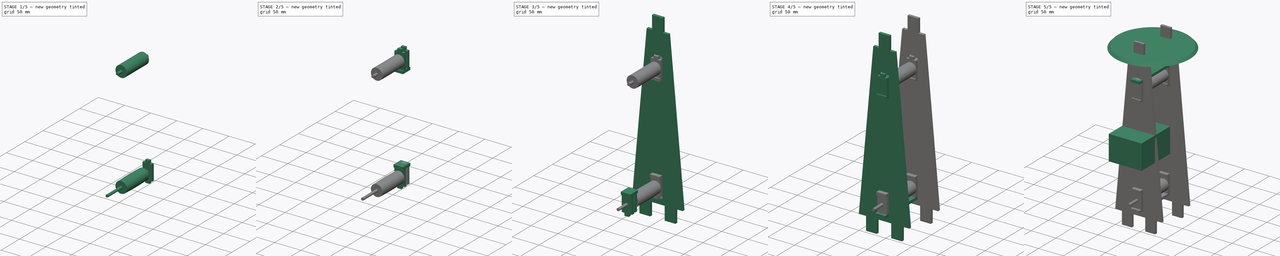
[diagram: build sequence overview — one tinted view per stage of 5, left to right]
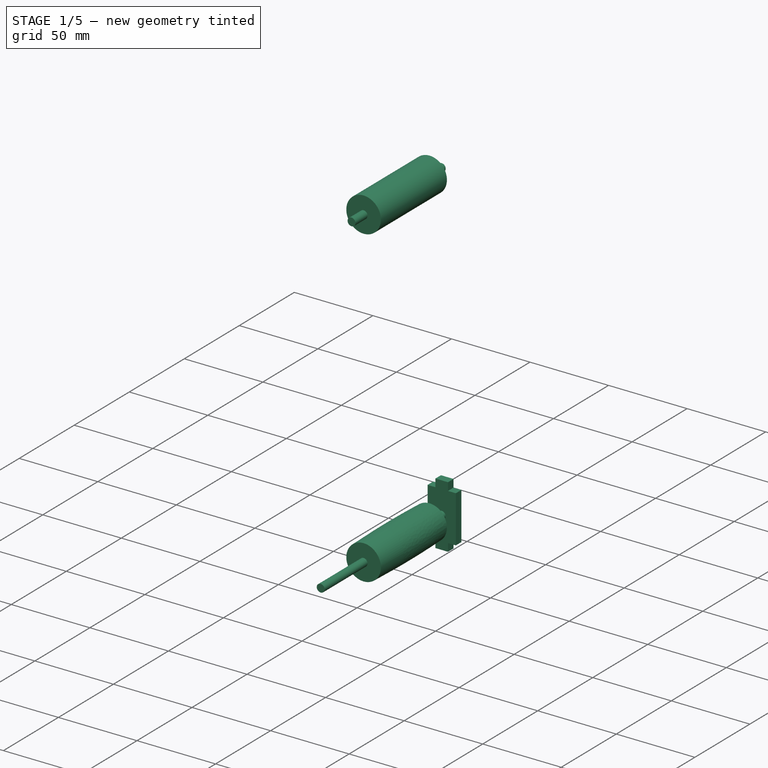
[diagram: stage 1 of 5 — iso view after this stage's code; geometry added in this stage tinted green]
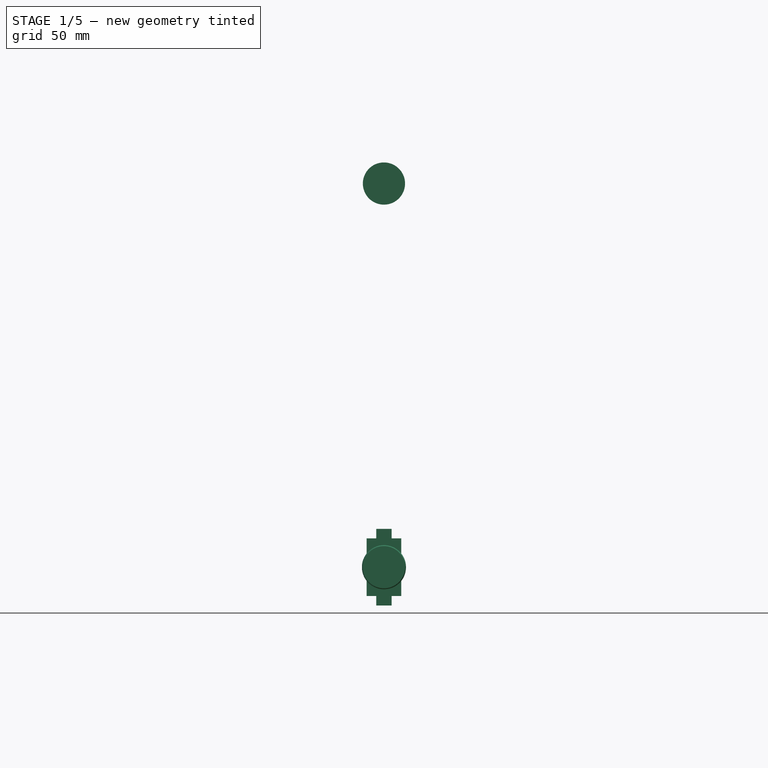
[diagram: stage 1 of 5 — front view after this stage's code; geometry added in this stage tinted green]
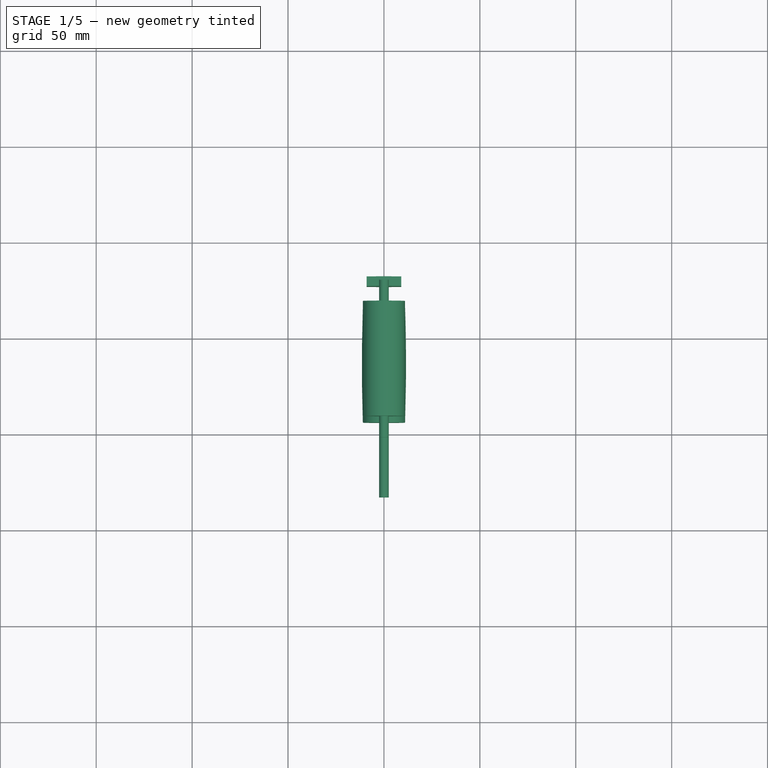
[diagram: stage 1 of 5 — top view after this stage's code; geometry added in this stage tinted green]
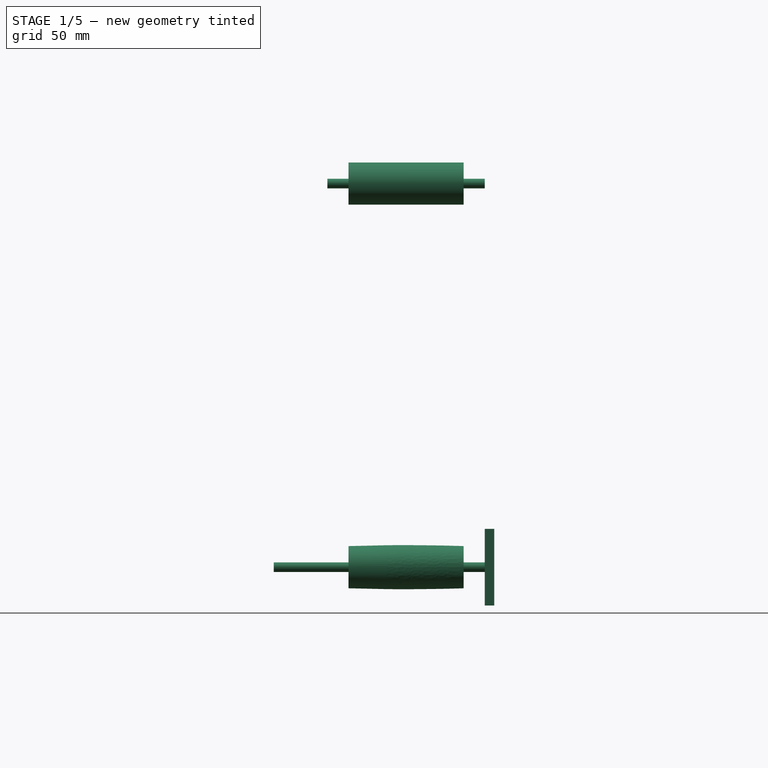
[diagram: stage 1 of 5 — right view after this stage's code; geometry added in this stage tinted green]
FCSTD DOCUMENT  (FreeCAD 0.16R6710 (Git))
Label: AssembledTotal
License: All rights reserved
LicenseURL: http://en.wikipedia.org/wiki/All_rights_reserved
objects: Sketcher::SketchObject×23, PartDesign::Pad×18, App::DocumentObjectGroup×6, Part::Cylinder×3, PartDesign::Revolution×2, Part::Cut×2, Part::Revolution×2, App::MeasureDistance×2, Part::MultiFuse×1, Part::Extrusion×1
note: 72 computed .brp shape members not serialized (recipe doc carries the construction recipe); baked Part::Feature solids carry a one-line shape summary decoded from their .brp

FEATURE [Sketcher::SketchObject] Sketch009
  Placement = pos=(0,82,-100) rot=(1,0,0;1.5708rad)
  sketch-geometry (12):
    g0: LineSegment StartX=-4 StartY=20 StartZ=0 EndX=-4 EndY=15 EndZ=0
    g1: LineSegment StartX=-4 StartY=15 StartZ=0 EndX=-9 EndY=15 EndZ=0
    g2: LineSegment StartX=-9 StartY=15 StartZ=0 EndX=-9 EndY=-15 EndZ=0
    g3: LineSegment StartX=-9 StartY=-15 StartZ=0 EndX=-4 EndY=-15 EndZ=0
    g4: LineSegment StartX=-4 StartY=-15 StartZ=0 EndX=-4 EndY=-20 EndZ=0
    g5: LineSegment StartX=-4 StartY=-20 StartZ=0 EndX=4 EndY=-20 EndZ=0
    g6: LineSegment StartX=4 StartY=-20 StartZ=0 EndX=4 EndY=-15 EndZ=0
    g7: LineSegment StartX=4 StartY=-15 StartZ=0 EndX=9 EndY=-15 EndZ=0
    g8: LineSegment StartX=9 StartY=-15 StartZ=0 EndX=9 EndY=15 EndZ=0
    g9: LineSegment StartX=9 StartY=15 StartZ=0 EndX=4 EndY=15 EndZ=0
    g10: LineSegment StartX=4 StartY=15 StartZ=0 EndX=4 EndY=20 EndZ=0
    g11: LineSegment StartX=4 StartY=20 StartZ=0 EndX=-4 EndY=20 EndZ=0
  constraints (33):
    c: Vertical(g0)
    c: Coincident(g0,g1)
    c: Horizontal(g1)
    c: Coincident(g1,g2)
    c: Vertical(g2)
    c: Coincident(g2,g3)
    c: Horizontal(g3)
    c: Coincident(g3,g4)
    c: Vertical(g4)
    c: Coincident(g4,g5)
    c: Horizontal(g5)
    c: Coincident(g5,g6)
    c: Vertical(g6)
    c: Coincident(g6,g7)
    c: Horizontal(g7)
    c: Coincident(g7,g8)
    c: Vertical(g8)
    c: Coincident(g8,g9)
    c: Horizontal(g9)
    c: Coincident(g9,g10)
    c: Vertical(g10)
    c: Coincident(g10,g11)
    c: Coincident(g11,g0)
    c: Horizontal(g11)
    c: Symmetric(g9,g0,g-2)
    c: Symmetric(g6,g3,g-2)
    c: Symmetric(g8,g1,g-2)
    c: Symmetric(g6,g9,g-1)
    c: Symmetric(g5,g10,g-1)
    c: DistanceY(g8) = 15
    c: DistanceY(g8,g10) = 5
    c: DistanceX(g11,g11) = 8
    c: DistanceX(g1,g8) = 18
FEATURE [PartDesign::Pad] Pad009  label="OuterBottomBearingStop_B"
  Length = 5
  Length2 = 100
  Placement = pos=(0,82,-100) rot=(1,0,0;1.5708rad)
  Sketch = -> Sketch009
  Type = 0
FEATURE [Part::Cut] Cut001  label="BowlWelded&holed"
  Base = -> Fusion003
  Placement = pos=(0,38.5,0) rot=(0,0,1;0rad)
  Tool = -> Pad019
FEATURE [Part::Cylinder] Cylinder  label="BottomAxis"
  Angle = 360
  Height = 110
  Placement = pos=(0,77,-100) rot=(1,0,0;1.5708rad)
  Radius = 2.5
FEATURE [Part::Cylinder] Cylinder001  label="TopAxis"
  Angle = 360
  Height = 82
  Placement = pos=(0,77,100) rot=(1,0,0;1.5708rad)
  Radius = 2.5
FEATURE [Sketcher::SketchObject] Sketch023
  Placement = pos=(0,36,-100) rot=(0,0,1;1.5708rad)
  sketch-geometry (5):
    g0: LineSegment StartX=-30 StartY=2.5 StartZ=0 EndX=30 EndY=2.5 EndZ=0
    g1: LineSegment StartX=-30 StartY=2.5 StartZ=0 EndX=-30 EndY=11 EndZ=0
    g2: LineSegment StartX=30 StartY=2.5 StartZ=0 EndX=30 EndY=11 EndZ=0
    g3: GeomPoint [constr] X=0 Y=11.5 Z=0
    g4: ArcOfCircle CenterX=0 CenterY=-888.75 CenterZ=0 NormalX=0 NormalY=0 NormalZ=1 Radius=900.25 StartAngle=1.53747 EndAngle=1.60413
  constraints (15):
    c: Horizontal(g0)
    c: Coincident(g1,g0)
    c: Vertical(g1)
    c: Coincident(g2,g0)
    c: Vertical(g2)
    c: Symmetric(g0,g0,g-2)
    c: DistanceX(g0,g0) = 60
    c: DistanceY(g0) = 2.5
    c: DistanceY(g2) = 11
    c: PointOnObject(g3,g-2)
    c: PointOnObject(g4,g-2)
    c: Coincident(g4,g1)
    c: Coincident(g4,g2)
    c: PointOnObject(g3,g4)
    c: DistanceY(g3) = 11.5
FEATURE [PartDesign::Revolution] Revolution001  label="BottomRoller"
  Angle = 360
  Axis = (0,1,0)
  Base = (0,36,-100)
  Placement = pos=(0,36,-100) rot=(0,0,1;1.5708rad)
  ReferenceAxis = -> Sketch023 [H_Axis]
  Sketch = -> Sketch023
FEATURE [Sketcher::SketchObject] Sketch024
  sketch-geometry (4):
    g0: LineSegment StartX=-11 StartY=100 StartZ=0 EndX=-11 EndY=-100 EndZ=0
    g1: LineSegment StartX=11 StartY=-100 StartZ=0 EndX=11 EndY=100 EndZ=0
    g2: ArcOfCircle CenterX=0 CenterY=100 CenterZ=0 NormalX=0 NormalY=0 NormalZ=1 Radius=11 StartAngle=0 EndAngle=3.14159
    g3: ArcOfCircle CenterX=0 CenterY=-100 CenterZ=0 NormalX=0 NormalY=0 NormalZ=1 Radius=11 StartAngle=3.14159 EndAngle=6.28319
  constraints (15):
    c: Vertical(g0)
    c: Vertical(g1)
    c: Symmetric(g0,g1,g-2)
    c: Symmetric(g0,g0,g-1)
    c: Symmetric(g1,g1,g-1)
    c: PointOnObject(g2,g-2)
    c: Coincident(g2,g0)
    c: Coincident(g2,g1)
    c: PointOnObject(g3,g-2)
    c: Coincident(g3,g0)
    c: Coincident(g3,g1)
    c: DistanceY(g1,g1) = 200
    c: DistanceY(g2) = 100
    c: DistanceX(g2,g1) = 11
    c: DistanceY(g3) = -100
FEATURE [Part::Extrusion] Extrude  label="Belt"
  Base = -> Sketch024
  Dir = (0,0,60)
  Placement = pos=(0,66,0) rot=(1,0,0;1.5708rad)
  Solid = false
FEATURE [Part::Cylinder] Cylinder002  label="TopRoller"
  Angle = 360
  Height = 60
  Placement = pos=(0,66,100) rot=(1,0,0;1.5708rad)
  Radius = 11
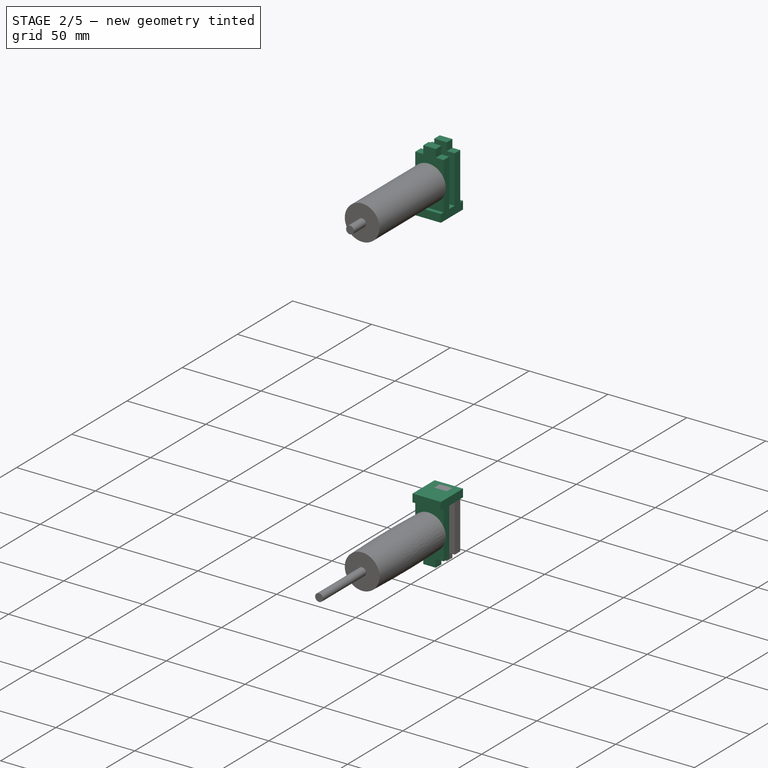
[diagram: stage 2 of 5 — iso view after this stage's code; geometry added in this stage tinted green]
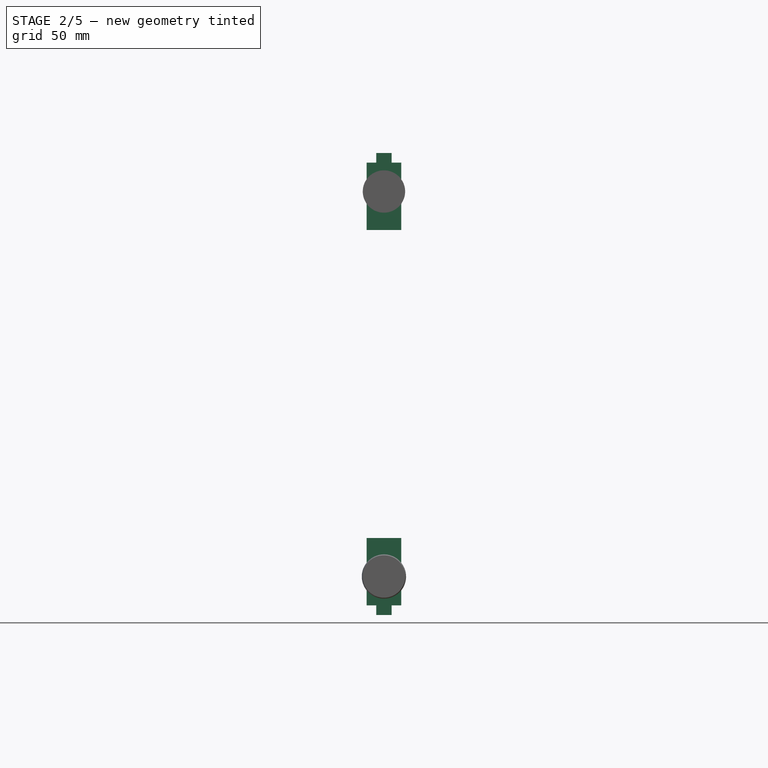
[diagram: stage 2 of 5 — front view after this stage's code; geometry added in this stage tinted green]
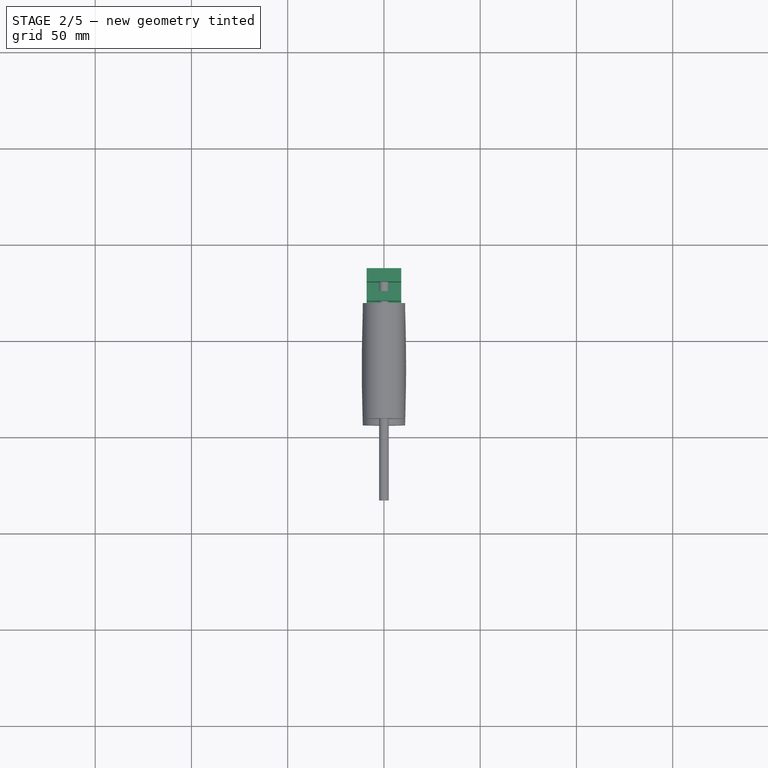
[diagram: stage 2 of 5 — top view after this stage's code; geometry added in this stage tinted green]
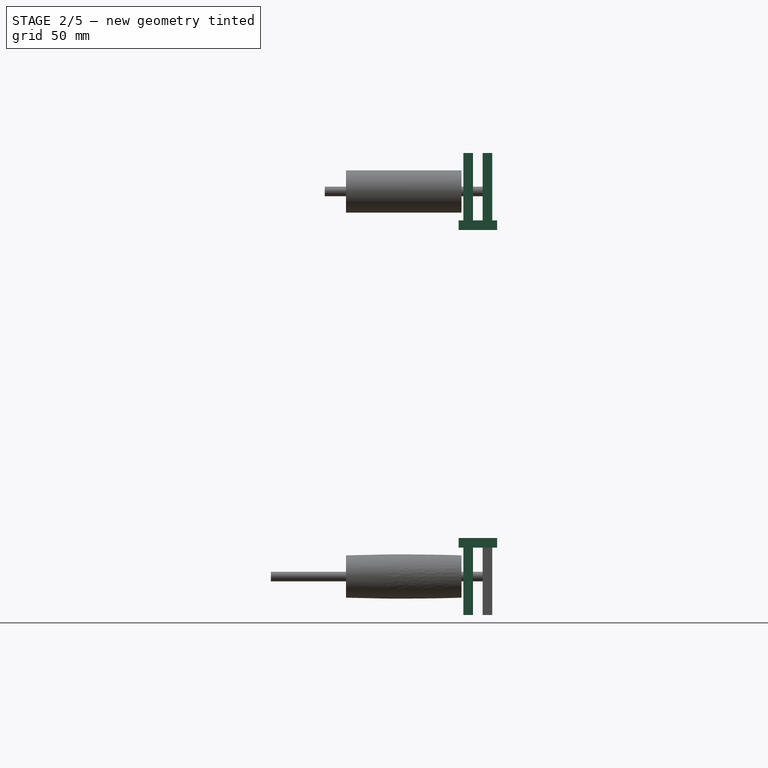
[diagram: stage 2 of 5 — right view after this stage's code; geometry added in this stage tinted green]
FEATURE [Sketcher::SketchObject] Sketch002
  Placement = pos=(0,82,100) rot=(1,0,0;1.5708rad)
  sketch-geometry (12):
    g0: LineSegment StartX=-4 StartY=20 StartZ=0 EndX=-4 EndY=15 EndZ=0
    g1: LineSegment StartX=-4 StartY=15 StartZ=0 EndX=-9 EndY=15 EndZ=0
    g2: LineSegment StartX=-9 StartY=15 StartZ=0 EndX=-9 EndY=-15 EndZ=0
    g3: LineSegment StartX=-9 StartY=-15 StartZ=0 EndX=-4 EndY=-15 EndZ=0
    g4: LineSegment StartX=-4 StartY=-15 StartZ=0 EndX=-4 EndY=-20 EndZ=0
    g5: LineSegment StartX=-4 StartY=-20 StartZ=0 EndX=4 EndY=-20 EndZ=0
    g6: LineSegment StartX=4 StartY=-20 StartZ=0 EndX=4 EndY=-15 EndZ=0
    g7: LineSegment StartX=4 StartY=-15 StartZ=0 EndX=9 EndY=-15 EndZ=0
    g8: LineSegment StartX=9 StartY=-15 StartZ=0 EndX=9 EndY=15 EndZ=0
    g9: LineSegment StartX=9 StartY=15 StartZ=0 EndX=4 EndY=15 EndZ=0
    g10: LineSegment StartX=4 StartY=15 StartZ=0 EndX=4 EndY=20 EndZ=0
    g11: LineSegment StartX=4 StartY=20 StartZ=0 EndX=-4 EndY=20 EndZ=0
  constraints (33):
    c: Vertical(g0)
    c: Coincident(g0,g1)
    c: Horizontal(g1)
    c: Coincident(g1,g2)
    c: Vertical(g2)
    c: Coincident(g2,g3)
    c: Horizontal(g3)
    c: Coincident(g3,g4)
    c: Vertical(g4)
    c: Coincident(g4,g5)
    c: Horizontal(g5)
    c: Coincident(g5,g6)
    c: Vertical(g6)
    c: Coincident(g6,g7)
    c: Horizontal(g7)
    c: Coincident(g7,g8)
    c: Vertical(g8)
    c: Coincident(g8,g9)
    c: Horizontal(g9)
    c: Coincident(g9,g10)
    c: Vertical(g10)
    c: Coincident(g10,g11)
    c: Coincident(g11,g0)
    c: Horizontal(g11)
    c: Symmetric(g9,g0,g-2)
    c: Symmetric(g6,g3,g-2)
    c: Symmetric(g8,g1,g-2)
    c: Symmetric(g6,g9,g-1)
    c: Symmetric(g5,g10,g-1)
    c: DistanceY(g8) = 15
    c: DistanceY(g8,g10) = 5
    c: DistanceX(g11,g11) = 8
    c: DistanceX(g1,g8) = 18
FEATURE [PartDesign::Pad] Pad002  label="OuterTopBearingStop_B"
  Length = 5
  Length2 = 100
  Placement = pos=(0,82,100) rot=(1,0,0;1.5708rad)
  Sketch = -> Sketch002
  Type = 0
FEATURE [Sketcher::SketchObject] Sketch003
  Placement = pos=(0,74.5,80) rot=(0,0,1;0rad)
  sketch-geometry (12):
    g0: LineSegment StartX=-9 StartY=10 StartZ=0 EndX=9 EndY=10 EndZ=0
    g1: LineSegment StartX=9 StartY=10 StartZ=0 EndX=9 EndY=-10 EndZ=0
    g2: LineSegment StartX=9 StartY=-10 StartZ=0 EndX=-9 EndY=-10 EndZ=0
    g3: LineSegment StartX=-9 StartY=-10 StartZ=0 EndX=-9 EndY=10 EndZ=0
    g4: LineSegment StartX=-4 StartY=7.5 StartZ=0 EndX=4 EndY=7.5 EndZ=0
    g5: LineSegment StartX=4 StartY=7.5 StartZ=0 EndX=4 EndY=2.5 EndZ=0
    g6: LineSegment StartX=4 StartY=2.5 StartZ=0 EndX=-4 EndY=2.5 EndZ=0
    g7: LineSegment StartX=-4 StartY=2.5 StartZ=0 EndX=-4 EndY=7.5 EndZ=0
    g8: LineSegment StartX=-4 StartY=-2.5 StartZ=0 EndX=4 EndY=-2.5 EndZ=0
    g9: LineSegment StartX=4 StartY=-2.5 StartZ=0 EndX=4 EndY=-7.5 EndZ=0
    g10: LineSegment StartX=4 StartY=-7.5 StartZ=0 EndX=-4 EndY=-7.5 EndZ=0
    g11: LineSegment StartX=-4 StartY=-7.5 StartZ=0 EndX=-4 EndY=-2.5 EndZ=0
  constraints (35):
    c: Coincident(g0,g1)
    c: Coincident(g1,g2)
    c: Coincident(g2,g3)
    c: Coincident(g3,g0)
    c: Horizontal(g0)
    c: Horizontal(g2)
    c: Vertical(g1)
    c: Vertical(g3)
    c: Symmetric(g0,g0,g-2)
    c: Symmetric(g1,g0,g-1)
    c: Coincident(g4,g5)
    c: Coincident(g5,g6)
    c: Coincident(g6,g7)
    c: Coincident(g7,g4)
    c: Horizontal(g4)
    c: Horizontal(g6)
    c: Vertical(g5)
    c: Vertical(g7)
    c: Coincident(g8,g9)
    c: Coincident(g9,g10)
    c: Coincident(g10,g11)
    c: Coincident(g11,g8)
    c: Horizontal(g8)
    c: Horizontal(g10)
    c: Vertical(g9)
    c: Vertical(g11)
    c: Symmetric(g8,g5,g-1)
    c: Symmetric(g4,g9,g-1)
    c: Symmetric(g5,g6,g-2)
    c: Symmetric(g8,g8,g-2)
    c: DistanceX(g0,g0) = 18
    c: DistanceX(g4,g4) = 8
    c: DistanceY(g1,g1) = 20
    c: DistanceY(g9,g9) = 5
    c: DistanceY(g8,g5) = 5
FEATURE [PartDesign::Pad] Pad003  label="TopAssembler_B"
  Length = 5
  Length2 = 100
  Placement = pos=(0,74.5,80) rot=(0,0,1;0rad)
  Sketch = -> Sketch003
  Type = 0
FEATURE [Sketcher::SketchObject] Sketch004
  Placement = pos=(0,72,100) rot=(1,0,0;1.5708rad)
  sketch-geometry (13):
    g0: LineSegment StartX=-4 StartY=20 StartZ=0 EndX=-4 EndY=15 EndZ=0
    g1: LineSegment StartX=-4 StartY=15 StartZ=0 EndX=-9 EndY=15 EndZ=0
    g2: LineSegment StartX=-9 StartY=15 StartZ=0 EndX=-9 EndY=-15 EndZ=0
    g3: LineSegment StartX=-9 StartY=-15 StartZ=0 EndX=-4 EndY=-15 EndZ=0
    g4: LineSegment StartX=-4 StartY=-15 StartZ=0 EndX=-4 EndY=-20 EndZ=0
    g5: LineSegment StartX=-4 StartY=-20 StartZ=0 EndX=4 EndY=-20 EndZ=0
    g6: LineSegment StartX=4 StartY=-20 StartZ=0 EndX=4 EndY=-15 EndZ=0
    g7: LineSegment StartX=4 StartY=-15 StartZ=0 EndX=9 EndY=-15 EndZ=0
    g8: LineSegment StartX=9 StartY=-15 StartZ=0 EndX=9 EndY=15 EndZ=0
    g9: LineSegment StartX=9 StartY=15 StartZ=0 EndX=4 EndY=15 EndZ=0
    g10: LineSegment StartX=4 StartY=15 StartZ=0 EndX=4 EndY=20 EndZ=0
    g11: LineSegment StartX=4 StartY=20 StartZ=0 EndX=-4 EndY=20 EndZ=0
    g12: Circle CenterX=0 CenterY=0 CenterZ=0 NormalX=0 NormalY=0 NormalZ=1 Radius=2.5
  constraints (35):
    c: Vertical(g0)
    c: Coincident(g0,g1)
    c: Horizontal(g1)
    c: Coincident(g1,g2)
    c: Vertical(g2)
    c: Coincident(g2,g3)
    c: Horizontal(g3)
    c: Coincident(g3,g4)
    c: Vertical(g4)
    c: Coincident(g4,g5)
    c: Horizontal(g5)
    c: Coincident(g5,g6)
    c: Vertical(g6)
    c: Coincident(g6,g7)
    c: Horizontal(g7)
    c: Coincident(g7,g8)
    c: Vertical(g8)
    c: Coincident(g8,g9)
    c: Horizontal(g9)
    c: Coincident(g9,g10)
    c: Vertical(g10)
    c: Coincident(g10,g11)
    c: Coincident(g11,g0)
    c: Horizontal(g11)
    c: Symmetric(g9,g0,g-2)
    c: Symmetric(g6,g3,g-2)
    c: Symmetric(g8,g1,g-2)
    c: Symmetric(g6,g9,g-1)
    c: Symmetric(g5,g10,g-1)
    c: DistanceY(g8) = 15
    c: DistanceY(g8,g10) = 5
    c: DistanceX(g11,g11) = 8
    c: DistanceX(g1,g8) = 18
    c: Coincident(g12,g-1)
    c: Radius(g12) = 2.5
FEATURE [PartDesign::Pad] Pad004  label="InnerTopBearingStopAxis_B"
  Length = 5
  Length2 = 100
  Placement = pos=(0,72,100) rot=(1,0,0;1.5708rad)
  Sketch = -> Sketch004
  Type = 0
FEATURE [Sketcher::SketchObject] Sketch005
  Placement = pos=(0,74.5,-85) rot=(0,0,1;0rad)
  sketch-geometry (12):
    g0: LineSegment StartX=-9 StartY=10 StartZ=0 EndX=9 EndY=10 EndZ=0
    g1: LineSegment StartX=9 StartY=10 StartZ=0 EndX=9 EndY=-10 EndZ=0
    g2: LineSegment StartX=9 StartY=-10 StartZ=0 EndX=-9 EndY=-10 EndZ=0
    g3: LineSegment StartX=-9 StartY=-10 StartZ=0 EndX=-9 EndY=10 EndZ=0
    g4: LineSegment StartX=-4 StartY=7.5 StartZ=0 EndX=4 EndY=7.5 EndZ=0
    g5: LineSegment StartX=4 StartY=7.5 StartZ=0 EndX=4 EndY=2.5 EndZ=0
    g6: LineSegment StartX=4 StartY=2.5 StartZ=0 EndX=-4 EndY=2.5 EndZ=0
    g7: LineSegment StartX=-4 StartY=2.5 StartZ=0 EndX=-4 EndY=7.5 EndZ=0
    g8: LineSegment StartX=-4 StartY=-2.5 StartZ=0 EndX=4 EndY=-2.5 EndZ=0
    g9: LineSegment StartX=4 StartY=-2.5 StartZ=0 EndX=4 EndY=-7.5 EndZ=0
    g10: LineSegment StartX=4 StartY=-7.5 StartZ=0 EndX=-4 EndY=-7.5 EndZ=0
    g11: LineSegment StartX=-4 StartY=-7.5 StartZ=0 EndX=-4 EndY=-2.5 EndZ=0
  constraints (35):
    c: Coincident(g0,g1)
    c: Coincident(g1,g2)
    c: Coincident(g2,g3)
    c: Coincident(g3,g0)
    c: Horizontal(g0)
    c: Horizontal(g2)
    c: Vertical(g1)
    c: Vertical(g3)
    c: Symmetric(g0,g0,g-2)
    c: Symmetric(g1,g0,g-1)
    c: Coincident(g4,g5)
    c: Coincident(g5,g6)
    c: Coincident(g6,g7)
    c: Coincident(g7,g4)
    c: Horizontal(g4)
    c: Horizontal(g6)
    c: Vertical(g5)
    c: Vertical(g7)
    c: Coincident(g8,g9)
    c: Coincident(g9,g10)
    c: Coincident(g10,g11)
    c: Coincident(g11,g8)
    c: Horizontal(g8)
    c: Horizontal(g10)
    c: Vertical(g9)
    c: Vertical(g11)
    c: Symmetric(g8,g5,g-1)
    c: Symmetric(g4,g9,g-1)
    c: Symmetric(g5,g6,g-2)
    c: Symmetric(g8,g8,g-2)
    c: DistanceX(g0,g0) = 18
    c: DistanceX(g4,g4) = 8
    c: DistanceY(g1,g1) = 20
    c: DistanceY(g9,g9) = 5
    c: DistanceY(g8,g5) = 5
FEATURE [PartDesign::Pad] Pad005  label="BottomAssembler_B"
  Length = 5
  Length2 = 100
  Placement = pos=(0,74.5,-85) rot=(0,0,1;0rad)
  Sketch = -> Sketch005
  Type = 0
FEATURE [Sketcher::SketchObject] Sketch008
  Placement = pos=(0,72,-100) rot=(1,0,0;1.5708rad)
  sketch-geometry (13):
    g0: LineSegment StartX=-4 StartY=20 StartZ=0 EndX=-4 EndY=15 EndZ=0
    g1: LineSegment StartX=-4 StartY=15 StartZ=0 EndX=-9 EndY=15 EndZ=0
    g2: LineSegment StartX=-9 StartY=15 StartZ=0 EndX=-9 EndY=-15 EndZ=0
    g3: LineSegment StartX=-9 StartY=-15 StartZ=0 EndX=-4 EndY=-15 EndZ=0
    g4: LineSegment StartX=-4 StartY=-15 StartZ=0 EndX=-4 EndY=-20 EndZ=0
    g5: LineSegment StartX=-4 StartY=-20 StartZ=0 EndX=4 EndY=-20 EndZ=0
    g6: LineSegment StartX=4 StartY=-20 StartZ=0 EndX=4 EndY=-15 EndZ=0
    g7: LineSegment StartX=4 StartY=-15 StartZ=0 EndX=9 EndY=-15 EndZ=0
    g8: LineSegment StartX=9 StartY=-15 StartZ=0 EndX=9 EndY=15 EndZ=0
    g9: LineSegment StartX=9 StartY=15 StartZ=0 EndX=4 EndY=15 EndZ=0
    g10: LineSegment StartX=4 StartY=15 StartZ=0 EndX=4 EndY=20 EndZ=0
    g11: LineSegment StartX=4 StartY=20 StartZ=0 EndX=-4 EndY=20 EndZ=0
    g12: Circle CenterX=0 CenterY=0 CenterZ=0 NormalX=0 NormalY=0 NormalZ=1 Radius=2.5
  constraints (35):
    c: Vertical(g0)
    c: Coincident(g0,g1)
    c: Horizontal(g1)
    c: Coincident(g1,g2)
    c: Vertical(g2)
    c: Coincident(g2,g3)
    c: Horizontal(g3)
    c: Coincident(g3,g4)
    c: Vertical(g4)
    c: Coincident(g4,g5)
    c: Horizontal(g5)
    c: Coincident(g5,g6)
    c: Vertical(g6)
    c: Coincident(g6,g7)
    c: Horizontal(g7)
    c: Coincident(g7,g8)
    c: Vertical(g8)
    c: Coincident(g8,g9)
    c: Horizontal(g9)
    c: Coincident(g9,g10)
    c: Vertical(g10)
    c: Coincident(g10,g11)
    c: Coincident(g11,g0)
    c: Horizontal(g11)
    c: Symmetric(g9,g0,g-2)
    c: Symmetric(g6,g3,g-2)
    c: Symmetric(g8,g1,g-2)
    c: Symmetric(g6,g9,g-1)
    c: Symmetric(g5,g10,g-1)
    c: DistanceY(g8) = 15
    c: DistanceY(g8,g10) = 5
    c: DistanceX(g11,g11) = 8
    c: DistanceX(g1,g8) = 18
    c: Coincident(g12,g-1)
    c: Radius(g12) = 2.5
FEATURE [PartDesign::Pad] Pad008  label="InnerBottomBearingStopAxis_B"
  Length = 5
  Length2 = 100
  Placement = pos=(0,72,-100) rot=(1,0,0;1.5708rad)
  Sketch = -> Sketch008
  Type = 0
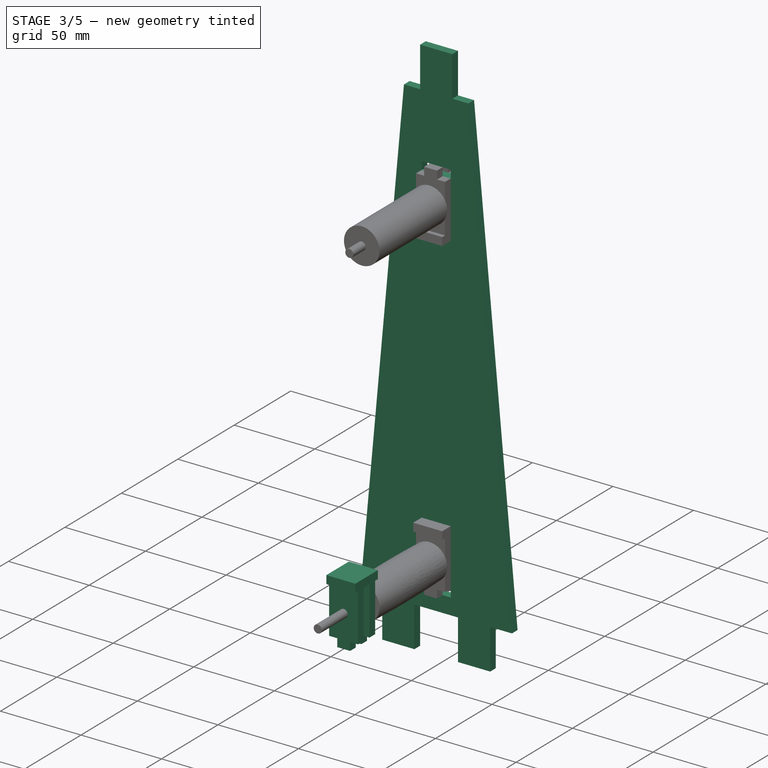
[diagram: stage 3 of 5 — iso view after this stage's code; geometry added in this stage tinted green]
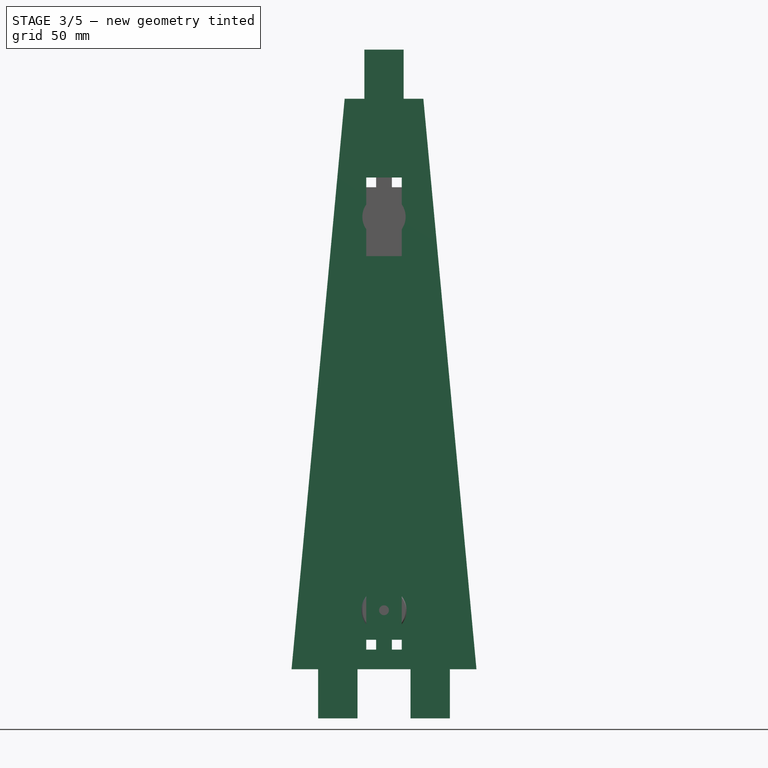
[diagram: stage 3 of 5 — front view after this stage's code; geometry added in this stage tinted green]
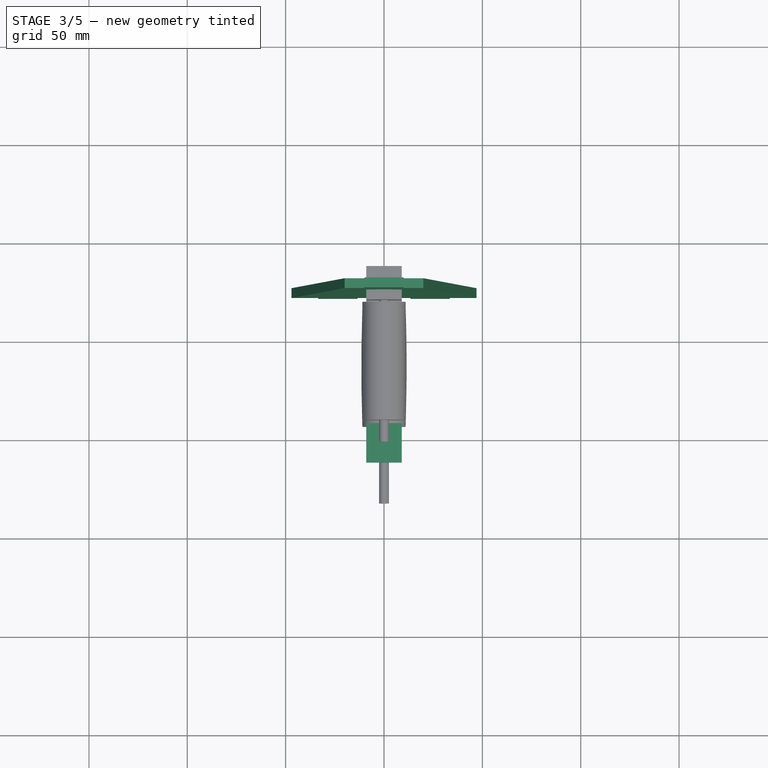
[diagram: stage 3 of 5 — top view after this stage's code; geometry added in this stage tinted green]
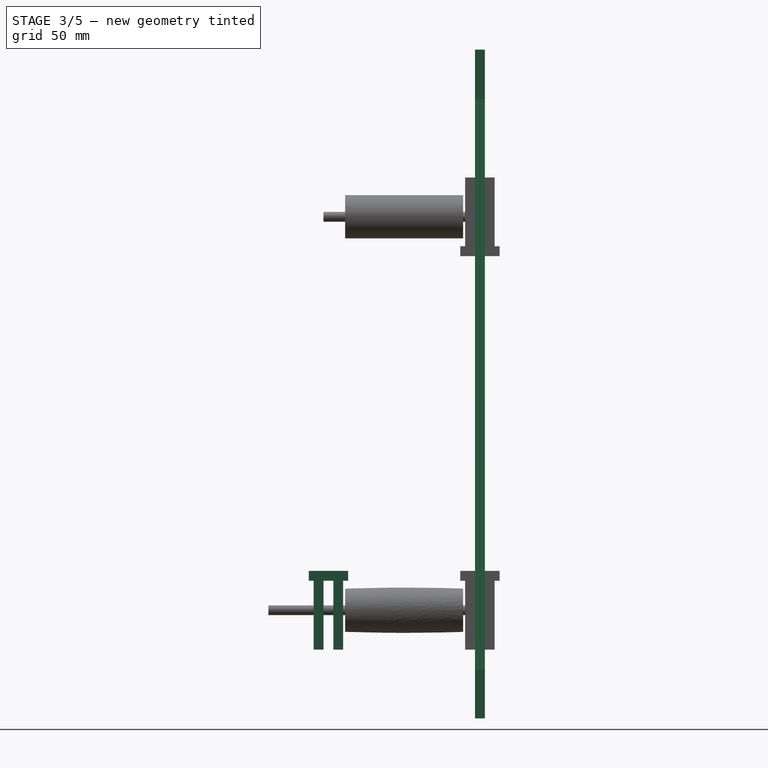
[diagram: stage 3 of 5 — right view after this stage's code; geometry added in this stage tinted green]
FEATURE [Sketcher::SketchObject] Sketch
  Placement = pos=(0,77,0) rot=(1,0,0;1.5708rad)
  sketch-geometry (38):
    g0: LineSegment StartX=-10 StartY=160 StartZ=0 EndX=-20 EndY=160 EndZ=0
    g1: LineSegment StartX=-20 StartY=160 StartZ=0 EndX=-47 EndY=-130 EndZ=0
    g2: LineSegment StartX=-47 StartY=-130 StartZ=0 EndX=-33.5 EndY=-130 EndZ=0
    g3: LineSegment StartX=-33.5 StartY=-130 StartZ=0 EndX=-33.5 EndY=-155 EndZ=0
    g4: LineSegment StartX=-33.5 StartY=-155 StartZ=0 EndX=-13.5 EndY=-155 EndZ=0
    g5: LineSegment StartX=-13.5 StartY=-155 StartZ=0 EndX=-13.5 EndY=-130 EndZ=0
    g6: LineSegment StartX=-13.5 StartY=-130 StartZ=0 EndX=13.5 EndY=-130 EndZ=0
    g7: LineSegment StartX=13.5 StartY=-130 StartZ=0 EndX=13.5 EndY=-155 EndZ=0
    g8: LineSegment StartX=13.5 StartY=-155 StartZ=0 EndX=33.5 EndY=-155 EndZ=0
    g9: LineSegment StartX=33.5 StartY=-155 StartZ=0 EndX=33.5 EndY=-130 EndZ=0
    g10: LineSegment StartX=33.5 StartY=-130 StartZ=0 EndX=47 EndY=-130 EndZ=0
    g11: LineSegment StartX=47 StartY=-130 StartZ=0 EndX=20 EndY=160 EndZ=0
    g12: LineSegment StartX=20 StartY=160 StartZ=0 EndX=10 EndY=160 EndZ=0
    g13: LineSegment StartX=10 StartY=160 StartZ=0 EndX=10 EndY=185 EndZ=0
    g14: LineSegment StartX=10 StartY=185 StartZ=0 EndX=-10 EndY=185 EndZ=0
    g15: LineSegment StartX=-10 StartY=185 StartZ=0 EndX=-10 EndY=160 EndZ=0
    g16: LineSegment [constr] StartX=-140 StartY=-130 StartZ=0 EndX=140 EndY=-130 EndZ=0
    g17: LineSegment [constr] StartX=-140 StartY=-155 StartZ=0 EndX=140 EndY=-155 EndZ=0
    g18: LineSegment [constr] StartX=-140 StartY=-100 StartZ=0 EndX=140 EndY=-100 EndZ=0
    g19: Circle CenterX=0 CenterY=-100 CenterZ=0 NormalX=0 NormalY=0 NormalZ=1 Radius=3.95
    g20: LineSegment [constr] StartX=-140 StartY=100 StartZ=0 EndX=140 EndY=100 EndZ=0
    g21: Circle CenterX=0 CenterY=100 CenterZ=0 NormalX=0 NormalY=0 NormalZ=1 Radius=3.95
    g22: LineSegment StartX=-9 StartY=120 StartZ=0 EndX=9 EndY=120 EndZ=0
    g23: LineSegment StartX=9 StartY=120 StartZ=0 EndX=9 EndY=115 EndZ=0
    g24: LineSegment StartX=9 StartY=115 StartZ=0 EndX=-9 EndY=115 EndZ=0
    g25: LineSegment StartX=-9 StartY=115 StartZ=0 EndX=-9 EndY=120 EndZ=0
    g26: LineSegment StartX=9 StartY=85 StartZ=0 EndX=-9 EndY=85 EndZ=0
    g27: LineSegment StartX=-9 StartY=85 StartZ=0 EndX=-9 EndY=80 EndZ=0
    g28: LineSegment StartX=-9 StartY=80 StartZ=0 EndX=9 EndY=80 EndZ=0
    g29: LineSegment StartX=9 StartY=80 StartZ=0 EndX=9 EndY=85 EndZ=0
    g30: LineSegment StartX=-9 StartY=-115 StartZ=0 EndX=9 EndY=-115 EndZ=0
    g31: LineSegment StartX=9 StartY=-115 StartZ=0 EndX=9 EndY=-120 EndZ=0
    g32: LineSegment StartX=9 StartY=-120 StartZ=0 EndX=-9 EndY=-120 EndZ=0
    g33: LineSegment StartX=-9 StartY=-120 StartZ=0 EndX=-9 EndY=-115 EndZ=0
    g34: LineSegment StartX=9 StartY=-85 StartZ=0 EndX=-9 EndY=-85 EndZ=0
    g35: LineSegment StartX=-9 StartY=-85 StartZ=0 EndX=-9 EndY=-80 EndZ=0
    g36: LineSegment StartX=-9 StartY=-80 StartZ=0 EndX=9 EndY=-80 EndZ=0
    g37: LineSegment StartX=9 StartY=-80 StartZ=0 EndX=9 EndY=-85 EndZ=0
  constraints (110):
    c: Horizontal(g0)
    c: Coincident(g0,g1)
    c: Coincident(g1,g2)
    c: Coincident(g2,g3)
    c: Vertical(g3)
    c: Coincident(g3,g4)
    c: Horizontal(g4)
    c: Coincident(g4,g5)
    c: Vertical(g5)
    c: Coincident(g5,g6)
    c: Horizontal(g6)
    c: Coincident(g6,g7)
    c: Vertical(g7)
    c: Coincident(g7,g8)
    c: Horizontal(g8)
    c: Coincident(g8,g9)
    c: Vertical(g9)
    c: Coincident(g9,g10)
    c: Horizontal(g10)
    c: Coincident(g10,g11)
    c: Coincident(g11,g12)
    c: Horizontal(g12)
    c: Coincident(g12,g13)
    c: Vertical(g13)
    c: Coincident(g13,g14)
    c: Horizontal(g14)
    c: Coincident(g14,g15)
    c: Coincident(g15,g0)
    c: Symmetric(g12,g0,g-2)
    c: Vertical(g15)
    c: Symmetric(g11,g0,g-2)
    c: DistanceX(g16) = 140
    c: DistanceY(g16) = -130
    c: Symmetric(g16,g16,g-2)
    c: Symmetric(g6,g5,g-2)
    c: Symmetric(g9,g2,g-2)
    c: Symmetric(g10,g1,g-2)
    c: Symmetric(g7,g4,g-2)
    c: Horizontal(g17)
    c: DistanceX(g16,g17) = 0
    c: DistanceY(g17,g16) = 25
    c: Symmetric(g17,g17,g-2)
    c: PointOnObject(g4,g17)
    c: DistanceY(g11) = 160
    c: DistanceY(g13,g13) = 25
    c: DistanceX(g14,g14) = 20
    c: DistanceX(g0,g0) = 10
    c: PointOnObject(g1,g16)
    c: PointOnObject(g5,g16)
    c: DistanceX(g6,g6) = 27
    c: DistanceX(g8,g8) = 20
    c: DistanceX(g10,g10) = 13.5
    c: DistanceX(g18,g16) = 0
    c: Symmetric(g18,g18,g-2)
    c: DistanceY(g16,g18) = 30
    c: PointOnObject(g19,g18)
    c: PointOnObject(g19,g-2)
    c: Radius(g19) = 3.95
    c: DistanceX(g20,g16) = 0
    c: Symmetric(g20,g20,g-2)
    c: DistanceY(g-1,g20) = 100
    c: PointOnObject(g21,g20)
    c: PointOnObject(g21,g-2)
    c: Radius(g21) = 3.95
    c: Coincident(g22,g23)
    c: Coincident(g23,g24)
    c: Coincident(g24,g25)
    c: Coincident(g25,g22)
    c: Horizontal(g22)
    c: Horizontal(g24)
    c: Vertical(g23)
    c: Vertical(g25)
    c: Coincident(g26,g27)
    c: Coincident(g27,g28)
    c: Coincident(g28,g29)
    c: Coincident(g29,g26)
    c: Horizontal(g26)
    c: Horizontal(g28)
    c: Vertical(g27)
    c: Vertical(g29)
    c: Symmetric(g26,g26,g-2)
    c: Symmetric(g23,g24,g-2)
    c: Symmetric(g26,g23,g20)
    c: Symmetric(g28,g22,g20)
    c: DistanceY(g20,g23) = 15
    c: DistanceY(g29,g29) = 5
    c: DistanceX(g28,g28) = 18
    c: Coincident(g30,g31)
    c: Coincident(g31,g32)
    c: Coincident(g32,g33)
    c: Coincident(g33,g30)
    c: Horizontal(g30)
    c: Horizontal(g32)
    c: Vertical(g31)
    c: Vertical(g33)
    c: Coincident(g34,g35)
    c: Coincident(g35,g36)
    c: Coincident(g36,g37)
    c: Coincident(g37,g34)
    c: Horizontal(g34)
    c: Horizontal(g36)
    c: Vertical(g35)
    c: Vertical(g37)
    c: Symmetric(g34,g34,g-2)
    c: Symmetric(g30,g30,g-2)
    c: Symmetric(g30,g34,g18)
    c: Symmetric(g31,g36,g18)
    c: DistanceY(g18,g34) = 15
    c: DistanceY(g31,g31) = 5
    c: DistanceX(g36,g36) = 18
FEATURE [PartDesign::Pad] Pad  label="Vertical_B"
  Length = 5
  Length2 = 100
  Placement = pos=(0,77,0) rot=(1,0,0;1.5708rad)
  Sketch = -> Sketch
  Type = 0
FEATURE [Sketcher::SketchObject] Sketch015
  Placement = pos=(0,-2.5,-85) rot=(0,0,1;0rad)
  sketch-geometry (12):
    g0: LineSegment StartX=-9 StartY=10 StartZ=0 EndX=9 EndY=10 EndZ=0
    g1: LineSegment StartX=9 StartY=10 StartZ=0 EndX=9 EndY=-10 EndZ=0
    g2: LineSegment StartX=9 StartY=-10 StartZ=0 EndX=-9 EndY=-10 EndZ=0
    g3: LineSegment StartX=-9 StartY=-10 StartZ=0 EndX=-9 EndY=10 EndZ=0
    g4: LineSegment StartX=-4 StartY=7.5 StartZ=0 EndX=4 EndY=7.5 EndZ=0
    g5: LineSegment StartX=4 StartY=7.5 StartZ=0 EndX=4 EndY=2.5 EndZ=0
    g6: LineSegment StartX=4 StartY=2.5 StartZ=0 EndX=-4 EndY=2.5 EndZ=0
    g7: LineSegment StartX=-4 StartY=2.5 StartZ=0 EndX=-4 EndY=7.5 EndZ=0
    g8: LineSegment StartX=-4 StartY=-2.5 StartZ=0 EndX=4 EndY=-2.5 EndZ=0
    g9: LineSegment StartX=4 StartY=-2.5 StartZ=0 EndX=4 EndY=-7.5 EndZ=0
    g10: LineSegment StartX=4 StartY=-7.5 StartZ=0 EndX=-4 EndY=-7.5 EndZ=0
    g11: LineSegment StartX=-4 StartY=-7.5 StartZ=0 EndX=-4 EndY=-2.5 EndZ=0
  constraints (35):
    c: Coincident(g0,g1)
    c: Coincident(g1,g2)
    c: Coincident(g2,g3)
    c: Coincident(g3,g0)
    c: Horizontal(g0)
    c: Horizontal(g2)
    c: Vertical(g1)
    c: Vertical(g3)
    c: Symmetric(g0,g0,g-2)
    c: Symmetric(g1,g0,g-1)
    c: Coincident(g4,g5)
    c: Coincident(g5,g6)
    c: Coincident(g6,g7)
    c: Coincident(g7,g4)
    c: Horizontal(g4)
    c: Horizontal(g6)
    c: Vertical(g5)
    c: Vertical(g7)
    c: Coincident(g8,g9)
    c: Coincident(g9,g10)
    c: Coincident(g10,g11)
    c: Coincident(g11,g8)
    c: Horizontal(g8)
    c: Horizontal(g10)
    c: Vertical(g9)
    c: Vertical(g11)
    c: Symmetric(g8,g5,g-1)
    c: Symmetric(g4,g9,g-1)
    c: Symmetric(g5,g6,g-2)
    c: Symmetric(g8,g8,g-2)
    c: DistanceX(g0,g0) = 18
    c: DistanceX(g4,g4) = 8
    c: DistanceY(g1,g1) = 20
    c: DistanceY(g9,g9) = 5
    c: DistanceY(g8,g5) = 5
FEATURE [PartDesign::Pad] Pad015  label="BottomAssembler_A"
  Length = 5
  Length2 = 100
  Placement = pos=(0,-2.5,-85) rot=(0,0,1;0rad)
  Sketch = -> Sketch015
  Type = 0
FEATURE [Sketcher::SketchObject] Sketch007
  Placement = pos=(0,5,-100) rot=(1,0,0;1.5708rad)
  sketch-geometry (13):
    g0: LineSegment StartX=-4 StartY=20 StartZ=0 EndX=-4 EndY=15 EndZ=0
    g1: LineSegment StartX=-4 StartY=15 StartZ=0 EndX=-9 EndY=15 EndZ=0
    g2: LineSegment StartX=-9 StartY=15 StartZ=0 EndX=-9 EndY=-15 EndZ=0
    g3: LineSegment StartX=-9 StartY=-15 StartZ=0 EndX=-4 EndY=-15 EndZ=0
    g4: LineSegment StartX=-4 StartY=-15 StartZ=0 EndX=-4 EndY=-20 EndZ=0
    g5: LineSegment StartX=-4 StartY=-20 StartZ=0 EndX=4 EndY=-20 EndZ=0
    g6: LineSegment StartX=4 StartY=-20 StartZ=0 EndX=4 EndY=-15 EndZ=0
    g7: LineSegment StartX=4 StartY=-15 StartZ=0 EndX=9 EndY=-15 EndZ=0
    g8: LineSegment StartX=9 StartY=-15 StartZ=0 EndX=9 EndY=15 EndZ=0
    g9: LineSegment StartX=9 StartY=15 StartZ=0 EndX=4 EndY=15 EndZ=0
    g10: LineSegment StartX=4 StartY=15 StartZ=0 EndX=4 EndY=20 EndZ=0
    g11: LineSegment StartX=4 StartY=20 StartZ=0 EndX=-4 EndY=20 EndZ=0
    g12: Circle CenterX=0 CenterY=0 CenterZ=0 NormalX=0 NormalY=0 NormalZ=1 Radius=2.5
  constraints (35):
    c: Vertical(g0)
    c: Coincident(g0,g1)
    c: Horizontal(g1)
    c: Coincident(g1,g2)
    c: Vertical(g2)
    c: Coincident(g2,g3)
    c: Horizontal(g3)
    c: Coincident(g3,g4)
    c: Vertical(g4)
    c: Coincident(g4,g5)
    c: Horizontal(g5)
    c: Coincident(g5,g6)
    c: Vertical(g6)
    c: Coincident(g6,g7)
    c: Horizontal(g7)
    c: Coincident(g7,g8)
    c: Vertical(g8)
    c: Coincident(g8,g9)
    c: Horizontal(g9)
    c: Coincident(g9,g10)
    c: Vertical(g10)
    c: Coincident(g10,g11)
    c: Coincident(g11,g0)
    c: Horizontal(g11)
    c: Symmetric(g9,g0,g-2)
    c: Symmetric(g6,g3,g-2)
    c: Symmetric(g8,g1,g-2)
    c: Symmetric(g6,g9,g-1)
    c: Symmetric(g5,g10,g-1)
    c: DistanceY(g8) = 15
    c: DistanceY(g8,g10) = 5
    c: DistanceX(g11,g11) = 8
    c: DistanceX(g1,g8) = 18
    c: Coincident(g12,g-1)
    c: Radius(g12) = 2.5
FEATURE [PartDesign::Pad] Pad007  label="InnerBottomBearingStopAxis_A"
  Length = 5
  Length2 = 100
  Placement = pos=(0,5,-100) rot=(1,0,0;1.5708rad)
  Sketch = -> Sketch007
  Type = 0
FEATURE [Sketcher::SketchObject] Sketch017
  Placement = pos=(0,-5,-100) rot=(1,0,0;1.5708rad)
  sketch-geometry (13):
    g0: LineSegment StartX=-4 StartY=20 StartZ=0 EndX=-4 EndY=15 EndZ=0
    g1: LineSegment StartX=-4 StartY=15 StartZ=0 EndX=-9 EndY=15 EndZ=0
    g2: LineSegment StartX=-9 StartY=15 StartZ=0 EndX=-9 EndY=-15 EndZ=0
    g3: LineSegment StartX=-9 StartY=-15 StartZ=0 EndX=-4 EndY=-15 EndZ=0
    g4: LineSegment StartX=-4 StartY=-15 StartZ=0 EndX=-4 EndY=-20 EndZ=0
    g5: LineSegment StartX=-4 StartY=-20 StartZ=0 EndX=4 EndY=-20 EndZ=0
    g6: LineSegment StartX=4 StartY=-20 StartZ=0 EndX=4 EndY=-15 EndZ=0
    g7: LineSegment StartX=4 StartY=-15 StartZ=0 EndX=9 EndY=-15 EndZ=0
    g8: LineSegment StartX=9 StartY=-15 StartZ=0 EndX=9 EndY=15 EndZ=0
    g9: LineSegment StartX=9 StartY=15 StartZ=0 EndX=4 EndY=15 EndZ=0
    g10: LineSegment StartX=4 StartY=15 StartZ=0 EndX=4 EndY=20 EndZ=0
    g11: LineSegment StartX=4 StartY=20 StartZ=0 EndX=-4 EndY=20 EndZ=0
    g12: Circle CenterX=0 CenterY=0 CenterZ=0 NormalX=0 NormalY=0 NormalZ=1 Radius=2.5
  constraints (35):
    c: Vertical(g0)
    c: Coincident(g0,g1)
    c: Horizontal(g1)
    c: Coincident(g1,g2)
    c: Vertical(g2)
    c: Coincident(g2,g3)
    c: Horizontal(g3)
    c: Coincident(g3,g4)
    c: Vertical(g4)
    c: Coincident(g4,g5)
    c: Horizontal(g5)
    c: Coincident(g5,g6)
    c: Vertical(g6)
    c: Coincident(g6,g7)
    c: Horizontal(g7)
    c: Coincident(g7,g8)
    c: Vertical(g8)
    c: Coincident(g8,g9)
    c: Horizontal(g9)
    c: Coincident(g9,g10)
    c: Vertical(g10)
    c: Coincident(g10,g11)
    c: Coincident(g11,g0)
    c: Horizontal(g11)
    c: Symmetric(g9,g0,g-2)
    c: Symmetric(g6,g3,g-2)
    c: Symmetric(g8,g1,g-2)
    c: Symmetric(g6,g9,g-1)
    c: Symmetric(g5,g10,g-1)
    c: DistanceY(g8) = 15
    c: DistanceY(g8,g10) = 5
    c: DistanceX(g11,g11) = 8
    c: DistanceX(g1,g8) = 18
    c: Coincident(g12,g-1)
    c: Radius(g12) = 2.5
FEATURE [PartDesign::Pad] Pad017  label="OuterBottomBearingStopAxis_A"
  Length = 5
  Length2 = 100
  Placement = pos=(0,-5,-100) rot=(1,0,0;1.5708rad)
  Sketch = -> Sketch017
  Type = 0
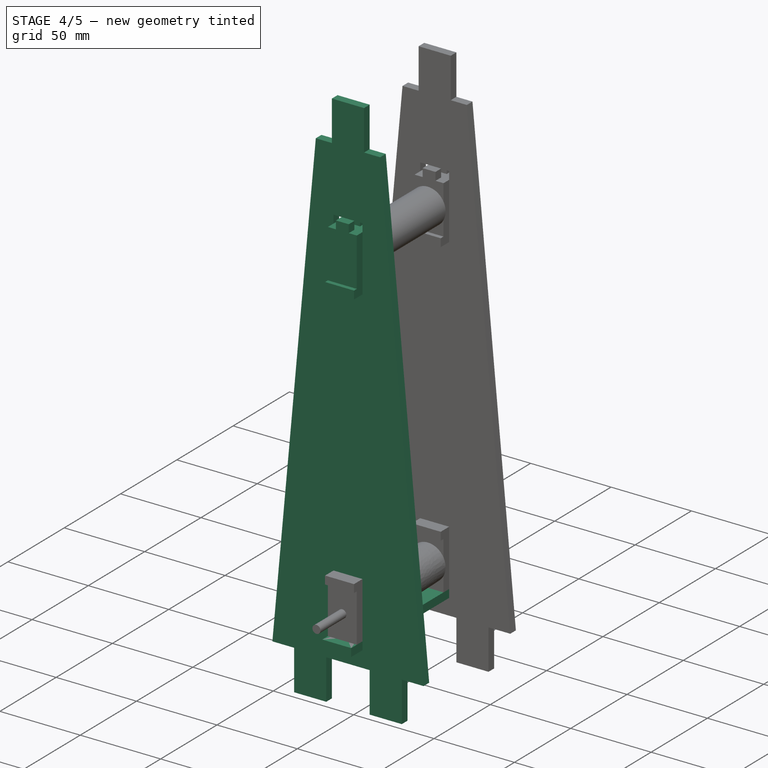
[diagram: stage 4 of 5 — iso view after this stage's code; geometry added in this stage tinted green]
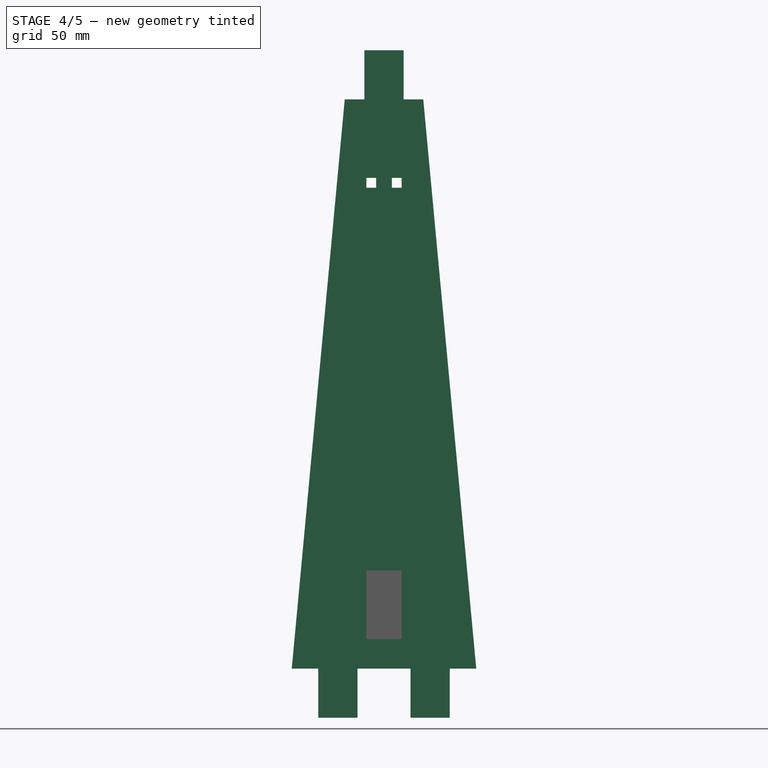
[diagram: stage 4 of 5 — front view after this stage's code; geometry added in this stage tinted green]
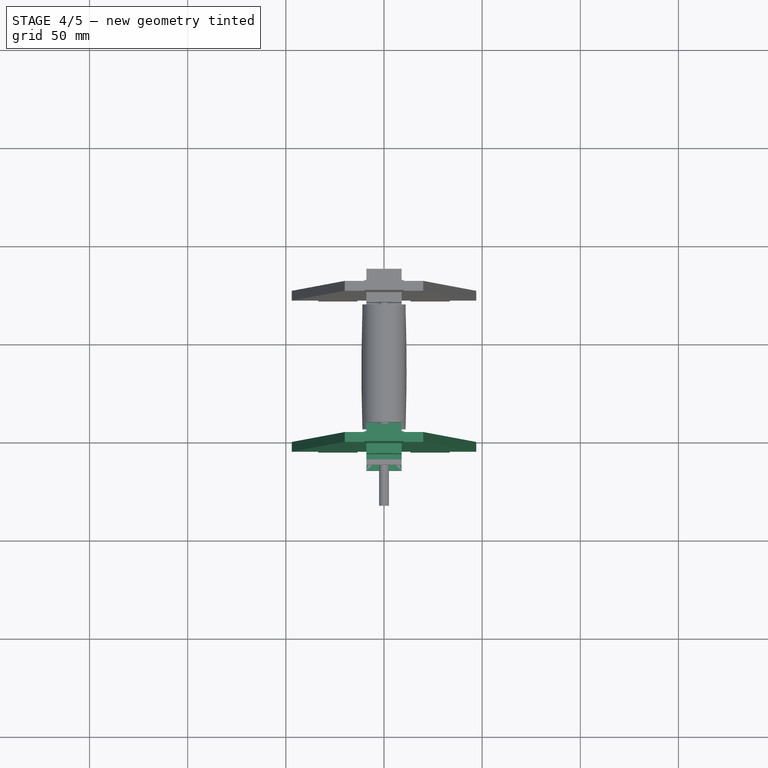
[diagram: stage 4 of 5 — top view after this stage's code; geometry added in this stage tinted green]
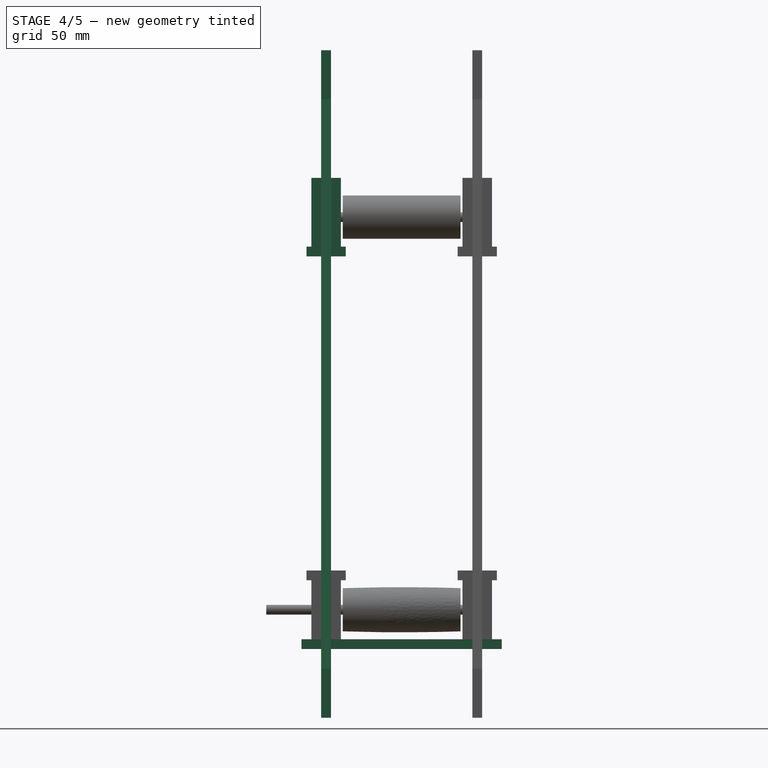
[diagram: stage 4 of 5 — right view after this stage's code; geometry added in this stage tinted green]
FEATURE [Sketcher::SketchObject] Sketch010
  Placement = pos=(0,0,0) rot=(1,0,0;1.5708rad)
  sketch-geometry (38):
    g0: LineSegment StartX=-10 StartY=160 StartZ=0 EndX=-20 EndY=160 EndZ=0
    g1: LineSegment StartX=-20 StartY=160 StartZ=0 EndX=-47 EndY=-130 EndZ=0
    g2: LineSegment StartX=-47 StartY=-130 StartZ=0 EndX=-33.5 EndY=-130 EndZ=0
    g3: LineSegment StartX=-33.5 StartY=-130 StartZ=0 EndX=-33.5 EndY=-155 EndZ=0
    g4: LineSegment StartX=-33.5 StartY=-155 StartZ=0 EndX=-13.5 EndY=-155 EndZ=0
    g5: LineSegment StartX=-13.5 StartY=-155 StartZ=0 EndX=-13.5 EndY=-130 EndZ=0
    g6: LineSegment StartX=-13.5 StartY=-130 StartZ=0 EndX=13.5 EndY=-130 EndZ=0
    g7: LineSegment StartX=13.5 StartY=-130 StartZ=0 EndX=13.5 EndY=-155 EndZ=0
    g8: LineSegment StartX=13.5 StartY=-155 StartZ=0 EndX=33.5 EndY=-155 EndZ=0
    g9: LineSegment StartX=33.5 StartY=-155 StartZ=0 EndX=33.5 EndY=-130 EndZ=0
    g10: LineSegment StartX=33.5 StartY=-130 StartZ=0 EndX=47 EndY=-130 EndZ=0
    g11: LineSegment StartX=47 StartY=-130 StartZ=0 EndX=20 EndY=160 EndZ=0
    g12: LineSegment StartX=20 StartY=160 StartZ=0 EndX=10 EndY=160 EndZ=0
    g13: LineSegment StartX=10 StartY=160 StartZ=0 EndX=10 EndY=185 EndZ=0
    g14: LineSegment StartX=10 StartY=185 StartZ=0 EndX=-10 EndY=185 EndZ=0
    g15: LineSegment StartX=-10 StartY=185 StartZ=0 EndX=-10 EndY=160 EndZ=0
    g16: LineSegment [constr] StartX=-140 StartY=-130 StartZ=0 EndX=140 EndY=-130 EndZ=0
    g17: LineSegment [constr] StartX=-140 StartY=-155 StartZ=0 EndX=140 EndY=-155 EndZ=0
    g18: LineSegment [constr] StartX=-140 StartY=-100 StartZ=0 EndX=140 EndY=-100 EndZ=0
    g19: Circle CenterX=0 CenterY=-100 CenterZ=0 NormalX=0 NormalY=0 NormalZ=1 Radius=3.95
    g20: LineSegment [constr] StartX=-140 StartY=100 StartZ=0 EndX=140 EndY=100 EndZ=0
    g21: Circle CenterX=0 CenterY=100 CenterZ=0 NormalX=0 NormalY=0 NormalZ=1 Radius=3.95
    g22: LineSegment StartX=-9 StartY=120 StartZ=0 EndX=9 EndY=120 EndZ=0
    g23: LineSegment StartX=9 StartY=120 StartZ=0 EndX=9 EndY=115 EndZ=0
    g24: LineSegment StartX=9 StartY=115 StartZ=0 EndX=-9 EndY=115 EndZ=0
    g25: LineSegment StartX=-9 StartY=115 StartZ=0 EndX=-9 EndY=120 EndZ=0
    g26: LineSegment StartX=9 StartY=85 StartZ=0 EndX=-9 EndY=85 EndZ=0
    g27: LineSegment StartX=-9 StartY=85 StartZ=0 EndX=-9 EndY=80 EndZ=0
    g28: LineSegment StartX=-9 StartY=80 StartZ=0 EndX=9 EndY=80 EndZ=0
    g29: LineSegment StartX=9 StartY=80 StartZ=0 EndX=9 EndY=85 EndZ=0
    g30: LineSegment StartX=-9 StartY=-115 StartZ=0 EndX=9 EndY=-115 EndZ=0
    g31: LineSegment StartX=9 StartY=-115 StartZ=0 EndX=9 EndY=-120 EndZ=0
    g32: LineSegment StartX=9 StartY=-120 StartZ=0 EndX=-9 EndY=-120 EndZ=0
    g33: LineSegment StartX=-9 StartY=-120 StartZ=0 EndX=-9 EndY=-115 EndZ=0
    g34: LineSegment StartX=9 StartY=-85 StartZ=0 EndX=-9 EndY=-85 EndZ=0
    g35: LineSegment StartX=-9 StartY=-85 StartZ=0 EndX=-9 EndY=-80 EndZ=0
    g36: LineSegment StartX=-9 StartY=-80 StartZ=0 EndX=9 EndY=-80 EndZ=0
    g37: LineSegment StartX=9 StartY=-80 StartZ=0 EndX=9 EndY=-85 EndZ=0
  constraints (110):
    c: Horizontal(g0)
    c: Coincident(g0,g1)
    c: Coincident(g1,g2)
    c: Coincident(g2,g3)
    c: Vertical(g3)
    c: Coincident(g3,g4)
    c: Horizontal(g4)
    c: Coincident(g4,g5)
    c: Vertical(g5)
    c: Coincident(g5,g6)
    c: Horizontal(g6)
    c: Coincident(g6,g7)
    c: Vertical(g7)
    c: Coincident(g7,g8)
    c: Horizontal(g8)
    c: Coincident(g8,g9)
    c: Vertical(g9)
    c: Coincident(g9,g10)
    c: Horizontal(g10)
    c: Coincident(g10,g11)
    c: Coincident(g11,g12)
    c: Horizontal(g12)
    c: Coincident(g12,g13)
    c: Vertical(g13)
    c: Coincident(g13,g14)
    c: Horizontal(g14)
    c: Coincident(g14,g15)
    c: Coincident(g15,g0)
    c: Symmetric(g12,g0,g-2)
    c: Vertical(g15)
    c: Symmetric(g11,g0,g-2)
    c: DistanceX(g16) = 140
    c: DistanceY(g16) = -130
    c: Symmetric(g16,g16,g-2)
    c: Symmetric(g6,g5,g-2)
    c: Symmetric(g9,g2,g-2)
    c: Symmetric(g10,g1,g-2)
    c: Symmetric(g7,g4,g-2)
    c: Horizontal(g17)
    c: DistanceX(g16,g17) = 0
    c: DistanceY(g17,g16) = 25
    c: Symmetric(g17,g17,g-2)
    c: PointOnObject(g4,g17)
    c: DistanceY(g11) = 160
    c: DistanceY(g13,g13) = 25
    c: DistanceX(g14,g14) = 20
    c: DistanceX(g0,g0) = 10
    c: PointOnObject(g1,g16)
    c: PointOnObject(g5,g16)
    c: DistanceX(g6,g6) = 27
    c: DistanceX(g8,g8) = 20
    c: DistanceX(g10,g10) = 13.5
    c: DistanceX(g18,g16) = 0
    c: Symmetric(g18,g18,g-2)
    c: DistanceY(g16,g18) = 30
    c: PointOnObject(g19,g18)
    c: PointOnObject(g19,g-2)
    c: Radius(g19) = 3.95
    c: DistanceX(g20,g16) = 0
    c: Symmetric(g20,g20,g-2)
    c: DistanceY(g-1,g20) = 100
    c: PointOnObject(g21,g20)
    c: PointOnObject(g21,g-2)
    c: Radius(g21) = 3.95
    c: Coincident(g22,g23)
    c: Coincident(g23,g24)
    c: Coincident(g24,g25)
    c: Coincident(g25,g22)
    c: Horizontal(g22)
    c: Horizontal(g24)
    c: Vertical(g23)
    c: Vertical(g25)
    c: Coincident(g26,g27)
    c: Coincident(g27,g28)
    c: Coincident(g28,g29)
    c: Coincident(g29,g26)
    c: Horizontal(g26)
    c: Horizontal(g28)
    c: Vertical(g27)
    c: Vertical(g29)
    c: Symmetric(g26,g26,g-2)
    c: Symmetric(g23,g24,g-2)
    c: Symmetric(g26,g23,g20)
    c: Symmetric(g28,g22,g20)
    c: DistanceY(g20,g23) = 15
    c: DistanceY(g29,g29) = 5
    c: DistanceX(g28,g28) = 18
    c: Coincident(g30,g31)
    c: Coincident(g31,g32)
    c: Coincident(g32,g33)
    c: Coincident(g33,g30)
    c: Horizontal(g30)
    c: Horizontal(g32)
    c: Vertical(g31)
    c: Vertical(g33)
    c: Coincident(g34,g35)
    c: Coincident(g35,g36)
    c: Coincident(g36,g37)
    c: Coincident(g37,g34)
    c: Horizontal(g34)
    c: Horizontal(g36)
    c: Vertical(g35)
    c: Vertical(g37)
    c: Symmetric(g34,g34,g-2)
    c: Symmetric(g30,g30,g-2)
    c: Symmetric(g30,g34,g18)
    c: Symmetric(g31,g36,g18)
    c: DistanceY(g18,g34) = 15
    c: DistanceY(g31,g31) = 5
    c: DistanceX(g36,g36) = 18
FEATURE [PartDesign::Pad] Pad010  label="Vertical_A"
  Length = 5
  Length2 = 100
  Placement = pos=(0,0,0) rot=(1,0,0;1.5708rad)
  Sketch = -> Sketch010
  Type = 0
FEATURE [Sketcher::SketchObject] Sketch012
  Placement = pos=(0,-5,100) rot=(1,0,0;1.5708rad)
  sketch-geometry (12):
    g0: LineSegment StartX=-4 StartY=20 StartZ=0 EndX=-4 EndY=15 EndZ=0
    g1: LineSegment StartX=-4 StartY=15 StartZ=0 EndX=-9 EndY=15 EndZ=0
    g2: LineSegment StartX=-9 StartY=15 StartZ=0 EndX=-9 EndY=-15 EndZ=0
    g3: LineSegment StartX=-9 StartY=-15 StartZ=0 EndX=-4 EndY=-15 EndZ=0
    g4: LineSegment StartX=-4 StartY=-15 StartZ=0 EndX=-4 EndY=-20 EndZ=0
    g5: LineSegment StartX=-4 StartY=-20 StartZ=0 EndX=4 EndY=-20 EndZ=0
    g6: LineSegment StartX=4 StartY=-20 StartZ=0 EndX=4 EndY=-15 EndZ=0
    g7: LineSegment StartX=4 StartY=-15 StartZ=0 EndX=9 EndY=-15 EndZ=0
    g8: LineSegment StartX=9 StartY=-15 StartZ=0 EndX=9 EndY=15 EndZ=0
    g9: LineSegment StartX=9 StartY=15 StartZ=0 EndX=4 EndY=15 EndZ=0
    g10: LineSegment StartX=4 StartY=15 StartZ=0 EndX=4 EndY=20 EndZ=0
    g11: LineSegment StartX=4 StartY=20 StartZ=0 EndX=-4 EndY=20 EndZ=0
  constraints (33):
    c: Vertical(g0)
    c: Coincident(g0,g1)
    c: Horizontal(g1)
    c: Coincident(g1,g2)
    c: Vertical(g2)
    c: Coincident(g2,g3)
    c: Horizontal(g3)
    c: Coincident(g3,g4)
    c: Vertical(g4)
    c: Coincident(g4,g5)
    c: Horizontal(g5)
    c: Coincident(g5,g6)
    c: Vertical(g6)
    c: Coincident(g6,g7)
    c: Horizontal(g7)
    c: Coincident(g7,g8)
    c: Vertical(g8)
    c: Coincident(g8,g9)
    c: Horizontal(g9)
    c: Coincident(g9,g10)
    c: Vertical(g10)
    c: Coincident(g10,g11)
    c: Coincident(g11,g0)
    c: Horizontal(g11)
    c: Symmetric(g9,g0,g-2)
    c: Symmetric(g6,g3,g-2)
    c: Symmetric(g8,g1,g-2)
    c: Symmetric(g6,g9,g-1)
    c: Symmetric(g5,g10,g-1)
    c: DistanceY(g8) = 15
    c: DistanceY(g8,g10) = 5
    c: DistanceX(g11,g11) = 8
    c: DistanceX(g1,g8) = 18
FEATURE [PartDesign::Pad] Pad012  label="TopBearingStop_A"
  Length = 5
  Length2 = 100
  Placement = pos=(0,-5,100) rot=(1,0,0;1.5708rad)
  Sketch = -> Sketch012
  Type = 0
FEATURE [Sketcher::SketchObject] Sketch013
  Placement = pos=(0,-2.5,80) rot=(0,0,1;0rad)
  sketch-geometry (12):
    g0: LineSegment StartX=-9 StartY=10 StartZ=0 EndX=9 EndY=10 EndZ=0
    g1: LineSegment StartX=9 StartY=10 StartZ=0 EndX=9 EndY=-10 EndZ=0
    g2: LineSegment StartX=9 StartY=-10 StartZ=0 EndX=-9 EndY=-10 EndZ=0
    g3: LineSegment StartX=-9 StartY=-10 StartZ=0 EndX=-9 EndY=10 EndZ=0
    g4: LineSegment StartX=-4 StartY=7.5 StartZ=0 EndX=4 EndY=7.5 EndZ=0
    g5: LineSegment StartX=4 StartY=7.5 StartZ=0 EndX=4 EndY=2.5 EndZ=0
    g6: LineSegment StartX=4 StartY=2.5 StartZ=0 EndX=-4 EndY=2.5 EndZ=0
    g7: LineSegment StartX=-4 StartY=2.5 StartZ=0 EndX=-4 EndY=7.5 EndZ=0
    g8: LineSegment StartX=-4 StartY=-2.5 StartZ=0 EndX=4 EndY=-2.5 EndZ=0
    g9: LineSegment StartX=4 StartY=-2.5 StartZ=0 EndX=4 EndY=-7.5 EndZ=0
    g10: LineSegment StartX=4 StartY=-7.5 StartZ=0 EndX=-4 EndY=-7.5 EndZ=0
    g11: LineSegment StartX=-4 StartY=-7.5 StartZ=0 EndX=-4 EndY=-2.5 EndZ=0
  constraints (35):
    c: Coincident(g0,g1)
    c: Coincident(g1,g2)
    c: Coincident(g2,g3)
    c: Coincident(g3,g0)
    c: Horizontal(g0)
    c: Horizontal(g2)
    c: Vertical(g1)
    c: Vertical(g3)
    c: Symmetric(g0,g0,g-2)
    c: Symmetric(g1,g0,g-1)
    c: Coincident(g4,g5)
    c: Coincident(g5,g6)
    c: Coincident(g6,g7)
    c: Coincident(g7,g4)
    c: Horizontal(g4)
    c: Horizontal(g6)
    c: Vertical(g5)
    c: Vertical(g7)
    c: Coincident(g8,g9)
    c: Coincident(g9,g10)
    c: Coincident(g10,g11)
    c: Coincident(g11,g8)
    c: Horizontal(g8)
    c: Horizontal(g10)
    c: Vertical(g9)
    c: Vertical(g11)
    c: Symmetric(g8,g5,g-1)
    c: Symmetric(g4,g9,g-1)
    c: Symmetric(g5,g6,g-2)
    c: Symmetric(g8,g8,g-2)
    c: DistanceX(g0,g0) = 18
    c: DistanceX(g4,g4) = 8
    c: DistanceY(g1,g1) = 20
    c: DistanceY(g9,g9) = 5
    c: DistanceY(g8,g5) = 5
FEATURE [PartDesign::Pad] Pad013  label="TopAssembler_A"
  Length = 5
  Length2 = 100
  Placement = pos=(0,-2.5,80) rot=(0,0,1;0rad)
  Sketch = -> Sketch013
  Type = 0
FEATURE [Sketcher::SketchObject] Sketch014
  Placement = pos=(0,5,100) rot=(1,0,0;1.5708rad)
  sketch-geometry (13):
    g0: LineSegment StartX=-4 StartY=20 StartZ=0 EndX=-4 EndY=15 EndZ=0
    g1: LineSegment StartX=-4 StartY=15 StartZ=0 EndX=-9 EndY=15 EndZ=0
    g2: LineSegment StartX=-9 StartY=15 StartZ=0 EndX=-9 EndY=-15 EndZ=0
    g3: LineSegment StartX=-9 StartY=-15 StartZ=0 EndX=-4 EndY=-15 EndZ=0
    g4: LineSegment StartX=-4 StartY=-15 StartZ=0 EndX=-4 EndY=-20 EndZ=0
    g5: LineSegment StartX=-4 StartY=-20 StartZ=0 EndX=4 EndY=-20 EndZ=0
    g6: LineSegment StartX=4 StartY=-20 StartZ=0 EndX=4 EndY=-15 EndZ=0
    g7: LineSegment StartX=4 StartY=-15 StartZ=0 EndX=9 EndY=-15 EndZ=0
    g8: LineSegment StartX=9 StartY=-15 StartZ=0 EndX=9 EndY=15 EndZ=0
    g9: LineSegment StartX=9 StartY=15 StartZ=0 EndX=4 EndY=15 EndZ=0
    g10: LineSegment StartX=4 StartY=15 StartZ=0 EndX=4 EndY=20 EndZ=0
    g11: LineSegment StartX=4 StartY=20 StartZ=0 EndX=-4 EndY=20 EndZ=0
    g12: Circle CenterX=0 CenterY=0 CenterZ=0 NormalX=0 NormalY=0 NormalZ=1 Radius=2.5
  constraints (35):
    c: Vertical(g0)
    c: Coincident(g0,g1)
    c: Horizontal(g1)
    c: Coincident(g1,g2)
    c: Vertical(g2)
    c: Coincident(g2,g3)
    c: Horizontal(g3)
    c: Coincident(g3,g4)
    c: Vertical(g4)
    c: Coincident(g4,g5)
    c: Horizontal(g5)
    c: Coincident(g5,g6)
    c: Vertical(g6)
    c: Coincident(g6,g7)
    c: Horizontal(g7)
    c: Coincident(g7,g8)
    c: Vertical(g8)
    c: Coincident(g8,g9)
    c: Horizontal(g9)
    c: Coincident(g9,g10)
    c: Vertical(g10)
    c: Coincident(g10,g11)
    c: Coincident(g11,g0)
    c: Horizontal(g11)
    c: Symmetric(g9,g0,g-2)
    c: Symmetric(g6,g3,g-2)
    c: Symmetric(g8,g1,g-2)
    c: Symmetric(g6,g9,g-1)
    c: Symmetric(g5,g10,g-1)
    c: DistanceY(g8) = 15
    c: DistanceY(g8,g10) = 5
    c: DistanceX(g11,g11) = 8
    c: DistanceX(g1,g8) = 18
    c: Coincident(g12,g-1)
    c: Radius(g12) = 2.5
FEATURE [PartDesign::Pad] Pad014  label="InnerTopBearingStopAxis_A"
  Length = 5
  Length2 = 100
  Placement = pos=(0,5,100) rot=(1,0,0;1.5708rad)
  Sketch = -> Sketch014
  Type = 0
FEATURE [Sketcher::SketchObject] Sketch026
  Placement = pos=(0,36,-120) rot=(0,0,1;0rad)
  sketch-geometry (20):
    g0: LineSegment StartX=-9 StartY=51 StartZ=0 EndX=9 EndY=51 EndZ=0
    g1: LineSegment StartX=9 StartY=51 StartZ=0 EndX=9 EndY=-51 EndZ=0
    g2: LineSegment StartX=9 StartY=-51 StartZ=0 EndX=-9 EndY=-51 EndZ=0
    g3: LineSegment StartX=-9 StartY=-51 StartZ=0 EndX=-9 EndY=51 EndZ=0
    g4: LineSegment StartX=-4 StartY=46 StartZ=0 EndX=4 EndY=46 EndZ=0
    g5: LineSegment StartX=4 StartY=46 StartZ=0 EndX=4 EndY=41 EndZ=0
    g6: LineSegment StartX=4 StartY=41 StartZ=0 EndX=-4 EndY=41 EndZ=0
    g7: LineSegment StartX=-4 StartY=41 StartZ=0 EndX=-4 EndY=46 EndZ=0
    g8: LineSegment StartX=-4 StartY=36 StartZ=0 EndX=4 EndY=36 EndZ=0
    g9: LineSegment StartX=4 StartY=36 StartZ=0 EndX=4 EndY=31 EndZ=0
    g10: LineSegment StartX=4 StartY=31 StartZ=0 EndX=-4 EndY=31 EndZ=0
    g11: LineSegment StartX=-4 StartY=31 StartZ=0 EndX=-4 EndY=36 EndZ=0
    g12: LineSegment StartX=-4 StartY=-41 StartZ=0 EndX=4 EndY=-41 EndZ=0
    g13: LineSegment StartX=4 StartY=-41 StartZ=0 EndX=4 EndY=-46 EndZ=0
    g14: LineSegment StartX=4 StartY=-46 StartZ=0 EndX=-4 EndY=-46 EndZ=0
    g15: LineSegment StartX=-4 StartY=-46 StartZ=0 EndX=-4 EndY=-41 EndZ=0
    g16: LineSegment StartX=-4 StartY=-31 StartZ=0 EndX=4 EndY=-31 EndZ=0
    g17: LineSegment StartX=4 StartY=-31 StartZ=0 EndX=4 EndY=-36 EndZ=0
    g18: LineSegment StartX=4 StartY=-36 StartZ=0 EndX=-4 EndY=-36 EndZ=0
    g19: LineSegment StartX=-4 StartY=-36 StartZ=0 EndX=-4 EndY=-31 EndZ=0
  constraints (58):
    c: Coincident(g0,g1)
    c: Coincident(g1,g2)
    c: Coincident(g2,g3)
    c: Coincident(g3,g0)
    c: Horizontal(g0)
    c: Horizontal(g2)
    c: Vertical(g1)
    c: Vertical(g3)
    c: Symmetric(g0,g0,g-2)
    c: Symmetric(g0,g2,g-1)
    c: Coincident(g4,g5)
    c: Coincident(g5,g6)
    c: Coincident(g6,g7)
    c: Coincident(g7,g4)
    c: Horizontal(g4)
    c: Horizontal(g6)
    c: Vertical(g5)
    c: Vertical(g7)
    c: Symmetric(g4,g4,g-2)
    c: DistanceY(g5,g5) = 5
    c: DistanceY(g4,g0) = 5
    c: Coincident(g8,g9)
    c: Coincident(g9,g10)
    c: Coincident(g10,g11)
    c: Coincident(g11,g8)
    c: Horizontal(g8)
    c: Horizontal(g10)
    c: Vertical(g9)
    c: Vertical(g11)
    c: Symmetric(g8,g8,g-2)
    c: DistanceX(g4,g4) = 8
    c: DistanceX(g8,g8) = 8
    c: DistanceY(g8,g5) = 5
    c: DistanceY(g9,g9) = 5
    c: DistanceX(g0,g0) = 18
    c: Coincident(g12,g13)
    c: Coincident(g13,g14)
    c: Coincident(g14,g15)
    c: Coincident(g15,g12)
    c: Horizontal(g12)
    c: Horizontal(g14)
    c: Vertical(g13)
    c: Vertical(g15)
    c: Symmetric(g13,g4,g-1)
    c: Symmetric(g13,g14,g-2)
    c: Symmetric(g12,g5,g-1)
    c: Coincident(g16,g17)
    c: Coincident(g17,g18)
    c: Coincident(g18,g19)
    c: Coincident(g19,g16)
    c: Horizontal(g16)
    c: Horizontal(g18)
    c: Vertical(g17)
    c: Vertical(g19)
    c: Symmetric(g17,g8,g-1)
    c: Symmetric(g16,g9,g-1)
    c: Symmetric(g18,g17,g-2)
    c: DistanceY(g17,g8) = 72
FEATURE [PartDesign::Pad] Pad021  label="BottomAssemblerWire"
  Length = 5
  Length2 = 100
  Placement = pos=(0,36,-120) rot=(0,0,1;0rad)
  Sketch = -> Sketch026
  Type = 0
FEATURE [App::DocumentObjectGroup] Group  label="VerticalMotor"
  Group = -> [Pad007,Pad015,Pad013,Pad012,Pad014,Pad017,Pad010]
FEATURE [App::DocumentObjectGroup] Group001  label="Vertical"
  Group = -> [Pad009,Pad008,Pad005,Pad004,Pad003,Pad002,Pad]
FEATURE [App::DocumentObjectGroup] Group002  label="Wood"
  Group = -> [Pad020,Pad021,Group001,Group,Cut]
FEATURE [App::DocumentObjectGroup] Group003  label="Axis"
  Group = -> [Cylinder001,Cylinder]
FEATURE [App::DocumentObjectGroup] Group004  label="Rollers"
  Group = -> [Cylinder002,Revolution001]
FEATURE [App::DocumentObjectGroup] Group005  label="Transmission"
  Group = -> [Extrude,Group004,Group003]
FEATURE [App::MeasureDistance] Distance  label="Distance: 82 mm"
  Distance = 82
  P1 = (33.0359,-5,19.9845)
  P2 = (33.0359,77,19.9845)
FEATURE [App::MeasureDistance] Distance001  label="Distance: 66,0718 mm"
  Distance = 66.0718
  P1 = (-33.0359,-5,19.9845)
  P2 = (33.0359,-5,19.9845)
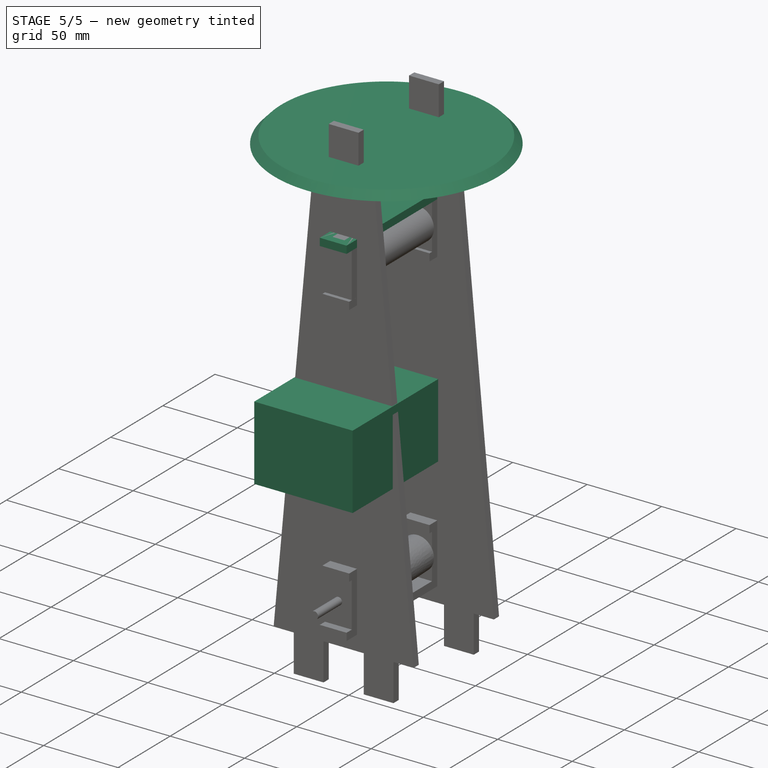
[diagram: stage 5 of 5 — iso view after this stage's code; geometry added in this stage tinted green]
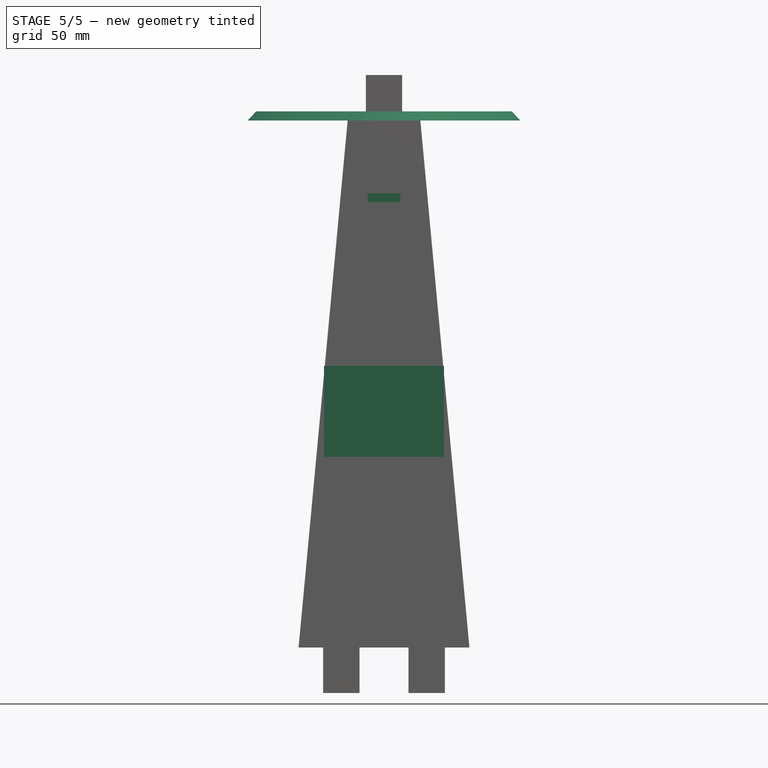
[diagram: stage 5 of 5 — front view after this stage's code; geometry added in this stage tinted green]
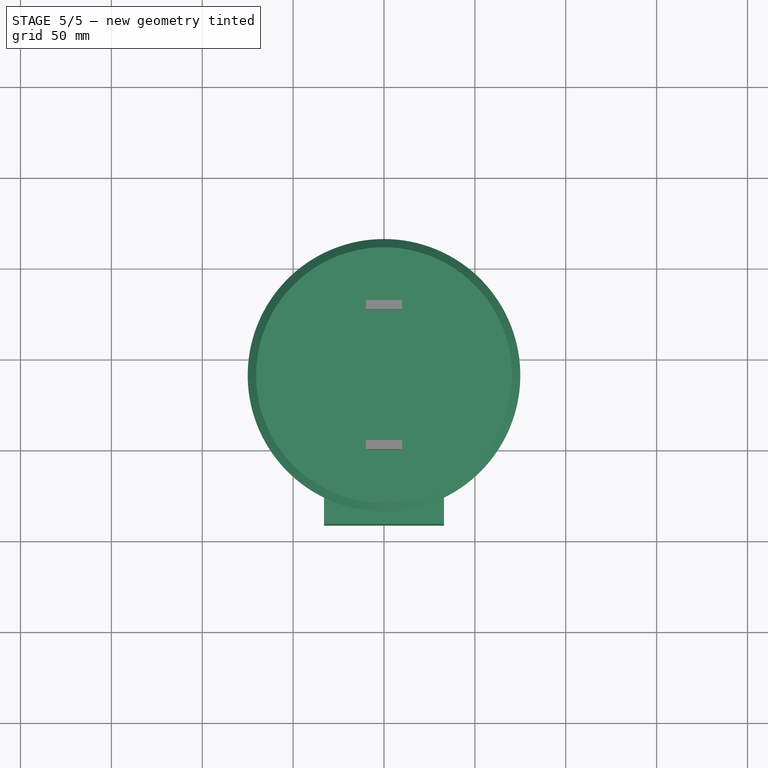
[diagram: stage 5 of 5 — top view after this stage's code; geometry added in this stage tinted green]
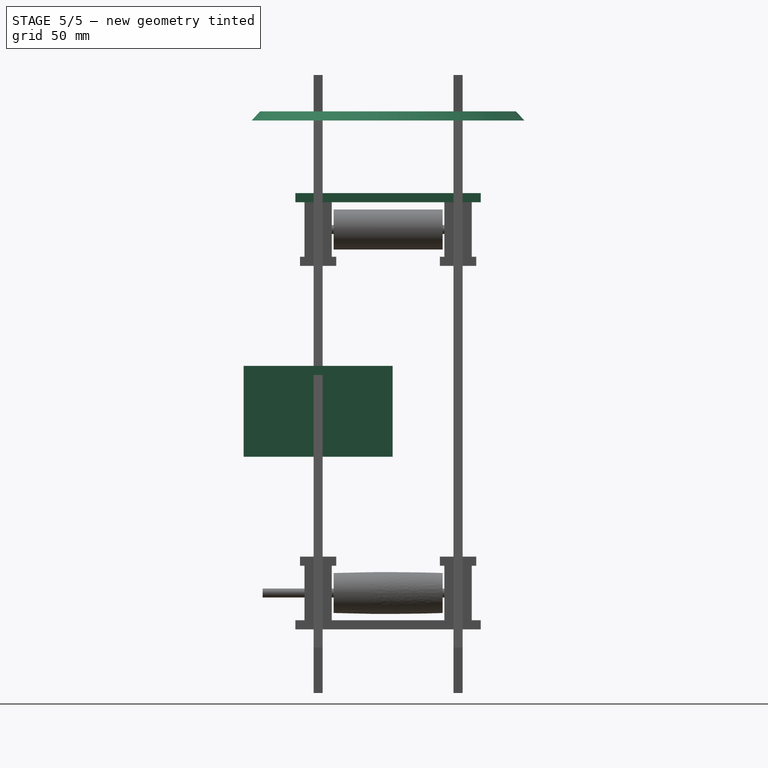
[diagram: stage 5 of 5 — right view after this stage's code; geometry added in this stage tinted green]
FEATURE [Sketcher::SketchObject] Sketch018
  sketch-geometry (9):
    g0: Circle CenterX=0 CenterY=0 CenterZ=0 NormalX=0 NormalY=0 NormalZ=1 Radius=75
    g1: LineSegment StartX=-41 StartY=10 StartZ=0 EndX=-36 EndY=10 EndZ=0
    g2: LineSegment StartX=-36 StartY=10 StartZ=0 EndX=-36 EndY=-10 EndZ=0
    g3: LineSegment StartX=-36 StartY=-10 StartZ=0 EndX=-41 EndY=-10 EndZ=0
    g4: LineSegment StartX=-41 StartY=-10 StartZ=0 EndX=-41 EndY=10 EndZ=0
    g5: LineSegment StartX=36 StartY=-10 StartZ=0 EndX=41 EndY=-10 EndZ=0
    g6: LineSegment StartX=41 StartY=-10 StartZ=0 EndX=41 EndY=10 EndZ=0
    g7: LineSegment StartX=41 StartY=10 StartZ=0 EndX=36 EndY=10 EndZ=0
    g8: LineSegment StartX=36 StartY=10 StartZ=0 EndX=36 EndY=-10 EndZ=0
  constraints (25):
    c: Coincident(g0,g-1)
    c: Radius(g0) = 75
    c: Coincident(g1,g2)
    c: Coincident(g2,g3)
    c: Coincident(g3,g4)
    c: Coincident(g4,g1)
    c: Horizontal(g1)
    c: Horizontal(g3)
    c: Vertical(g2)
    c: Vertical(g4)
    c: Coincident(g5,g6)
    c: Coincident(g6,g7)
    c: Coincident(g7,g8)
    c: Coincident(g8,g5)
    c: Horizontal(g5)
    c: Horizontal(g7)
    c: Vertical(g6)
    c: Vertical(g8)
    c: Symmetric(g1,g7,g-2)
    c: Symmetric(g1,g6,g-2)
    c: Symmetric(g5,g6,g-1)
    c: DistanceX(g1,g7) = 72
    c: DistanceX(g1,g1) = 5
    c: Symmetric(g2,g1,g-1)
    c: DistanceY(g4,g4) = 20
FEATURE [PartDesign::Pad] Pad018
  Length = 5
  Length2 = 100
  Sketch = -> Sketch018
  Type = 0
FEATURE [Sketcher::SketchObject] Sketch019
  Placement = pos=(0,0,0) rot=(1,0,0;1.5708rad)
  sketch-geometry (3):
    g0: LineSegment StartX=-75 StartY=0 StartZ=0 EndX=-75 EndY=5 EndZ=0
    g1: LineSegment StartX=-75 StartY=5 StartZ=0 EndX=-70.3562 EndY=5 EndZ=0
    g2: ArcOfCircle CenterX=0 CenterY=-65 CenterZ=0 NormalX=0 NormalY=0 NormalZ=1 Radius=99.2472 StartAngle=2.35873 EndAngle=2.4275
  constraints (11):
    c: PointOnObject(g0,g-1)
    c: Vertical(g0)
    c: Coincident(g0,g1)
    c: Horizontal(g1)
    c: DistanceY(g0,g0) = 5
    c: PointOnObject(g2,g-2)
    c: Coincident(g2,g0)
    c: Coincident(g2,g1)
    c: DistanceY(g2) = -65
    c: DistanceX(g0) = -75
    c: Radius(g2) = 99.2472
FEATURE [PartDesign::Revolution] Revolution
  Angle = 360
  Axis = (0,0,1)
  Base = (0,0,0)
  Placement = pos=(0,0,0) rot=(1,0,0;1.5708rad)
  ReferenceAxis = -> Sketch019 [V_Axis]
  Sketch = -> Sketch019
FEATURE [Part::Cut] Cut  label="BowlSupport"
  Base = -> Pad018
  Placement = pos=(0,36,160) rot=(0,0,1;1.5708rad)
  Tool = -> Revolution
FEATURE [Sketcher::SketchObject] Sketch020
  sketch-geometry (2):
    g0: ArcOfCircle CenterX=0 CenterY=-5 CenterZ=0 NormalX=0 NormalY=0 NormalZ=1 Radius=100 StartAngle=1.82348 EndAngle=3.09157
    g1: ArcOfCircle CenterX=0 CenterY=403.825 CenterZ=0 NormalX=0 NormalY=0 NormalZ=1 Radius=313 StartAngle=4.63243 EndAngle=4.71239
  constraints (9):
    c: PointOnObject(g0,g-2)
    c: PointOnObject(g0,g-1)
    c: Radius(g0) = 100
    c: DistanceY(g0) = -5
    c: PointOnObject(g1,g-2)
    c: Coincident(g1,g0)
    c: PointOnObject(g1,g-2)
    c: DistanceY(g1,g0) = 1
    c: DistanceX(g0,g-1) = 25
FEATURE [Part::Revolution] Revolve  label="BowlBottom"
  Angle = 360
  Axis = (0,1,0)
  Base = (0,0,0)
  Placement = pos=(0,0,0) rot=(0,0,1;3.14159rad)
  Solid = true
  Source = -> Sketch020
FEATURE [Sketcher::SketchObject] Sketch021
  Placement = pos=(0,0,0) rot=(0,0,1;3.14159rad)
  sketch-geometry (2):
    g0: ArcOfCircle CenterX=0 CenterY=-5 CenterZ=0 NormalX=0 NormalY=0 NormalZ=1 Radius=100 StartAngle=1.82348 EndAngle=3.09157
    g1: ArcOfCircle CenterX=0 CenterY=403.825 CenterZ=0 NormalX=0 NormalY=0 NormalZ=1 Radius=313 StartAngle=4.63243 EndAngle=4.71239
  constraints (9):
    c: PointOnObject(g0,g-2)
    c: PointOnObject(g0,g-1)
    c: Radius(g0) = 100
    c: DistanceY(g0) = -5
    c: PointOnObject(g1,g-2)
    c: Coincident(g1,g0)
    c: PointOnObject(g1,g-2)
    c: DistanceY(g1,g0) = 1
    c: DistanceX(g0,g-1) = 25
FEATURE [Part::Revolution] Revolve001  label="BowlTop"
  Angle = 360
  Axis = (0,1,0)
  Base = (0,0,0)
  Placement = pos=(0,0,0) rot=(0,0,1;3.14159rad)
  Solid = true
  Source = -> Sketch021
FEATURE [Part::MultiFuse] Fusion003  label="BowlWelded"
  Placement = pos=(0,-2.5,100) rot=(1,0,0;1.5708rad)
  Shapes = -> [Revolve001,Revolve]
FEATURE [Sketcher::SketchObject] Sketch022
  Placement = pos=(0,0,0) rot=(1,0,0;3.14159rad)
  sketch-geometry (5):
    g0: LineSegment [constr] StartX=-100 StartY=2.5 StartZ=0 EndX=100 EndY=2.5 EndZ=0
    g1: LineSegment StartX=-33.0359 StartY=43.5 StartZ=0 EndX=33.0359 EndY=43.5 EndZ=0
    g2: LineSegment StartX=33.0359 StartY=43.5 StartZ=0 EndX=33.0359 EndY=-38.5 EndZ=0
    g3: LineSegment StartX=33.0359 StartY=-38.5 StartZ=0 EndX=-33.0359 EndY=-38.5 EndZ=0
    g4: LineSegment StartX=-33.0359 StartY=-38.5 StartZ=0 EndX=-33.0359 EndY=43.5 EndZ=0
  constraints (15):
    c: DistanceX(g0,g0) = 200
    c: DistanceY(g-1,g0) = 2.5
    c: Symmetric(g0,g0,g-2)
    c: Coincident(g1,g2)
    c: Coincident(g2,g3)
    c: Coincident(g3,g4)
    c: Coincident(g4,g1)
    c: Horizontal(g1)
    c: Horizontal(g3)
    c: Vertical(g2)
    c: Vertical(g4)
    c: Symmetric(g1,g1,g-2)
    c: Symmetric(g1,g3,g0)
    c: DistanceY(g4,g4) = 82
    c: DistanceX(g1,g1) = 66.0718
FEATURE [PartDesign::Pad] Pad019  label="BowlHole"
  Length = 50
  Length2 = 100
  Midplane = true
  Placement = pos=(0,0,0) rot=(1,0,0;3.14159rad)
  Sketch = -> Sketch022
  Type = 0
FEATURE [Sketcher::SketchObject] Sketch025
  Placement = pos=(0,36,115) rot=(0,0,1;0rad)
  sketch-geometry (20):
    g0: LineSegment StartX=-9 StartY=51 StartZ=0 EndX=9 EndY=51 EndZ=0
    g1: LineSegment StartX=9 StartY=51 StartZ=0 EndX=9 EndY=-51 EndZ=0
    g2: LineSegment StartX=9 StartY=-51 StartZ=0 EndX=-9 EndY=-51 EndZ=0
    g3: LineSegment StartX=-9 StartY=-51 StartZ=0 EndX=-9 EndY=51 EndZ=0
    g4: LineSegment StartX=-4 StartY=46 StartZ=0 EndX=4 EndY=46 EndZ=0
    g5: LineSegment StartX=4 StartY=46 StartZ=0 EndX=4 EndY=41 EndZ=0
    g6: LineSegment StartX=4 StartY=41 StartZ=0 EndX=-4 EndY=41 EndZ=0
    g7: LineSegment StartX=-4 StartY=41 StartZ=0 EndX=-4 EndY=46 EndZ=0
    g8: LineSegment StartX=-4 StartY=36 StartZ=0 EndX=4 EndY=36 EndZ=0
    g9: LineSegment StartX=4 StartY=36 StartZ=0 EndX=4 EndY=31 EndZ=0
    g10: LineSegment StartX=4 StartY=31 StartZ=0 EndX=-4 EndY=31 EndZ=0
    g11: LineSegment StartX=-4 StartY=31 StartZ=0 EndX=-4 EndY=36 EndZ=0
    g12: LineSegment StartX=-4 StartY=-41 StartZ=0 EndX=4 EndY=-41 EndZ=0
    g13: LineSegment StartX=4 StartY=-41 StartZ=0 EndX=4 EndY=-46 EndZ=0
    g14: LineSegment StartX=4 StartY=-46 StartZ=0 EndX=-4 EndY=-46 EndZ=0
    g15: LineSegment StartX=-4 StartY=-46 StartZ=0 EndX=-4 EndY=-41 EndZ=0
    g16: LineSegment StartX=-4 StartY=-31 StartZ=0 EndX=4 EndY=-31 EndZ=0
    g17: LineSegment StartX=4 StartY=-31 StartZ=0 EndX=4 EndY=-36 EndZ=0
    g18: LineSegment StartX=4 StartY=-36 StartZ=0 EndX=-4 EndY=-36 EndZ=0
    g19: LineSegment StartX=-4 StartY=-36 StartZ=0 EndX=-4 EndY=-31 EndZ=0
  constraints (58):
    c: Coincident(g0,g1)
    c: Coincident(g1,g2)
    c: Coincident(g2,g3)
    c: Coincident(g3,g0)
    c: Horizontal(g0)
    c: Horizontal(g2)
    c: Vertical(g1)
    c: Vertical(g3)
    c: Symmetric(g0,g0,g-2)
    c: Symmetric(g0,g2,g-1)
    c: Coincident(g4,g5)
    c: Coincident(g5,g6)
    c: Coincident(g6,g7)
    c: Coincident(g7,g4)
    c: Horizontal(g4)
    c: Horizontal(g6)
    c: Vertical(g5)
    c: Vertical(g7)
    c: Symmetric(g4,g4,g-2)
    c: DistanceY(g5,g5) = 5
    c: DistanceY(g4,g0) = 5
    c: Coincident(g8,g9)
    c: Coincident(g9,g10)
    c: Coincident(g10,g11)
    c: Coincident(g11,g8)
    c: Horizontal(g8)
    c: Horizontal(g10)
    c: Vertical(g9)
    c: Vertical(g11)
    c: Symmetric(g8,g8,g-2)
    c: DistanceX(g4,g4) = 8
    c: DistanceX(g8,g8) = 8
    c: DistanceY(g8,g5) = 5
    c: DistanceY(g9,g9) = 5
    c: DistanceX(g0,g0) = 18
    c: Coincident(g12,g13)
    c: Coincident(g13,g14)
    c: Coincident(g14,g15)
    c: Coincident(g15,g12)
    c: Horizontal(g12)
    c: Horizontal(g14)
    c: Vertical(g13)
    c: Vertical(g15)
    c: Symmetric(g13,g4,g-1)
    c: Symmetric(g13,g14,g-2)
    c: Symmetric(g12,g5,g-1)
    c: Coincident(g16,g17)
    c: Coincident(g17,g18)
    c: Coincident(g18,g19)
    c: Coincident(g19,g16)
    c: Horizontal(g16)
    c: Horizontal(g18)
    c: Vertical(g17)
    c: Vertical(g19)
    c: Symmetric(g17,g8,g-1)
    c: Symmetric(g16,g9,g-1)
    c: Symmetric(g18,g17,g-2)
    c: DistanceY(g17,g8) = 72
FEATURE [PartDesign::Pad] Pad020  label="TopAssemblerWire"
  Length = 5
  Length2 = 100
  Placement = pos=(0,36,115) rot=(0,0,1;0rad)
  Sketch = -> Sketch025
  Type = 0
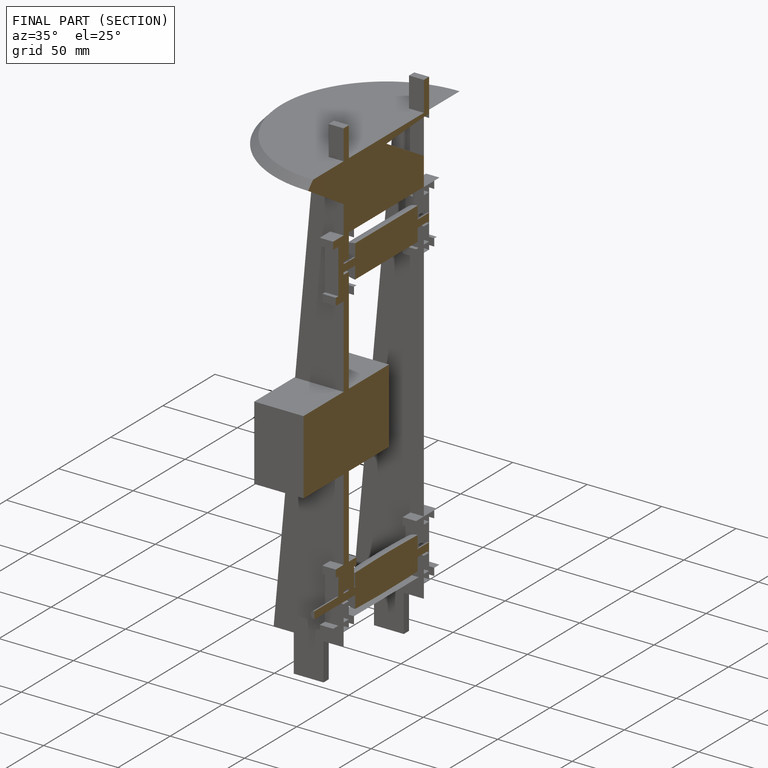
[diagram: finished part — half-section view (interior)]
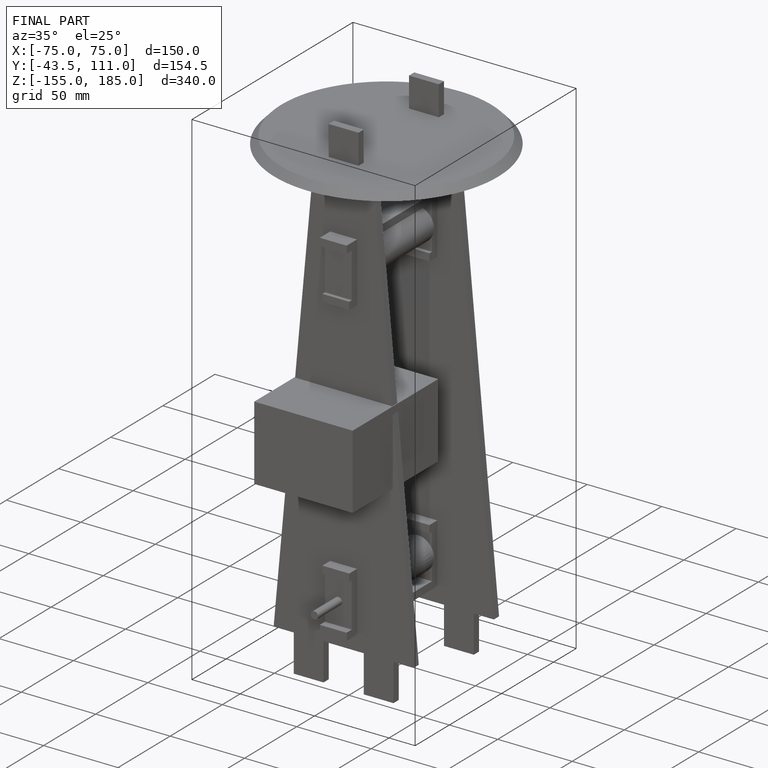
[diagram: finished part — iso view with bounding-box wireframe]
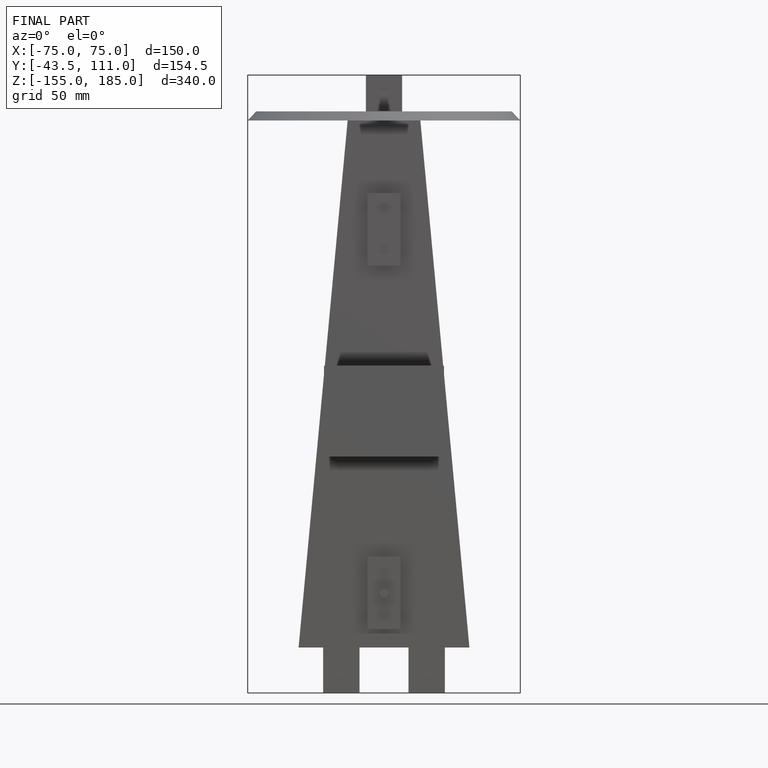
[diagram: finished part — front view with bounding-box wireframe]
